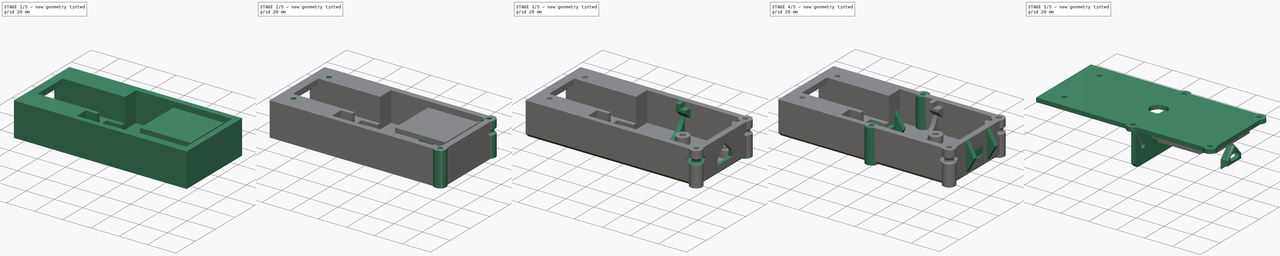
[diagram: build sequence overview — one tinted view per stage of 5, left to right]
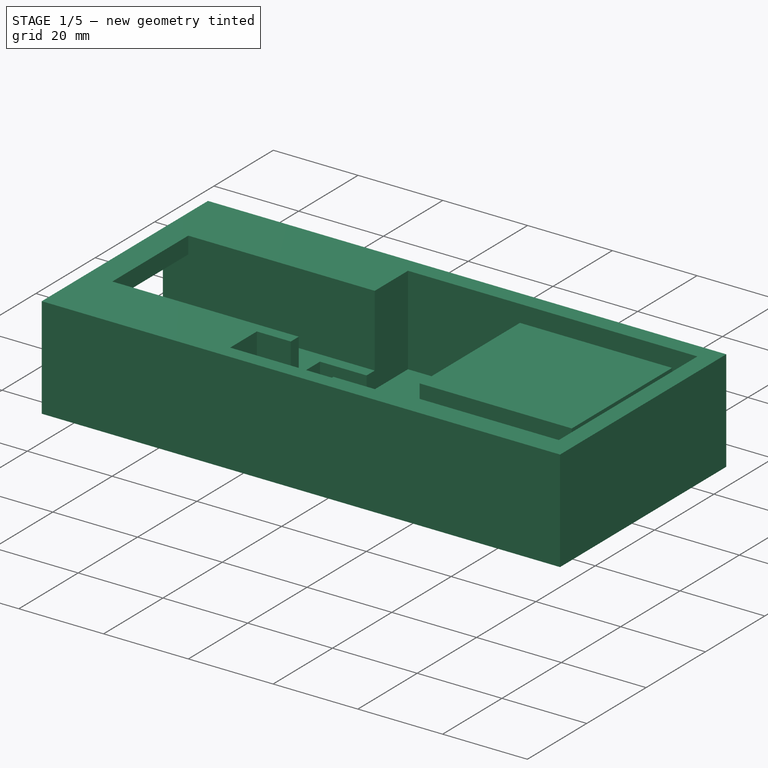
[diagram: stage 1 of 5 — iso view after this stage's code; geometry added in this stage tinted green]
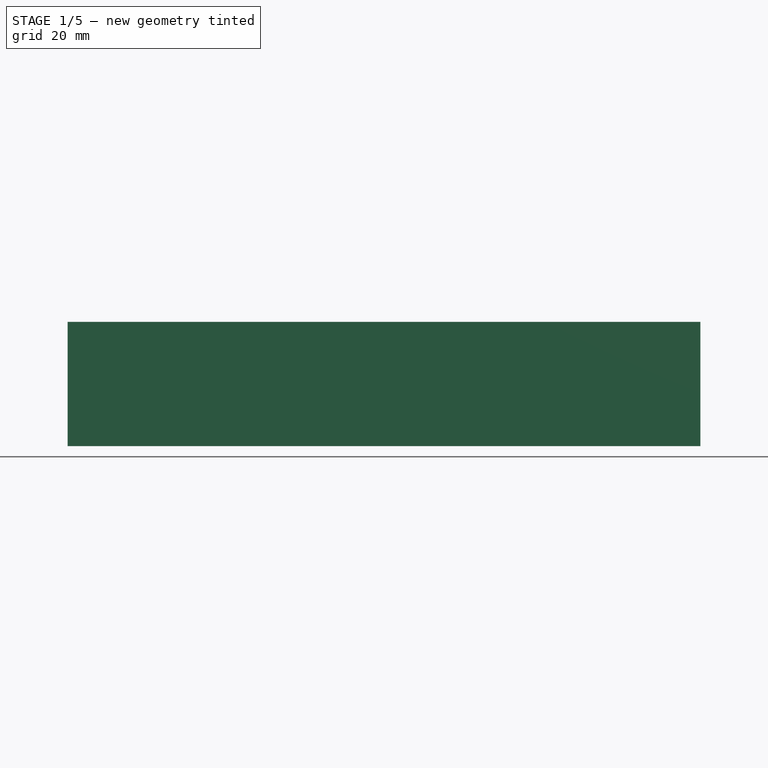
[diagram: stage 1 of 5 — front view after this stage's code; geometry added in this stage tinted green]
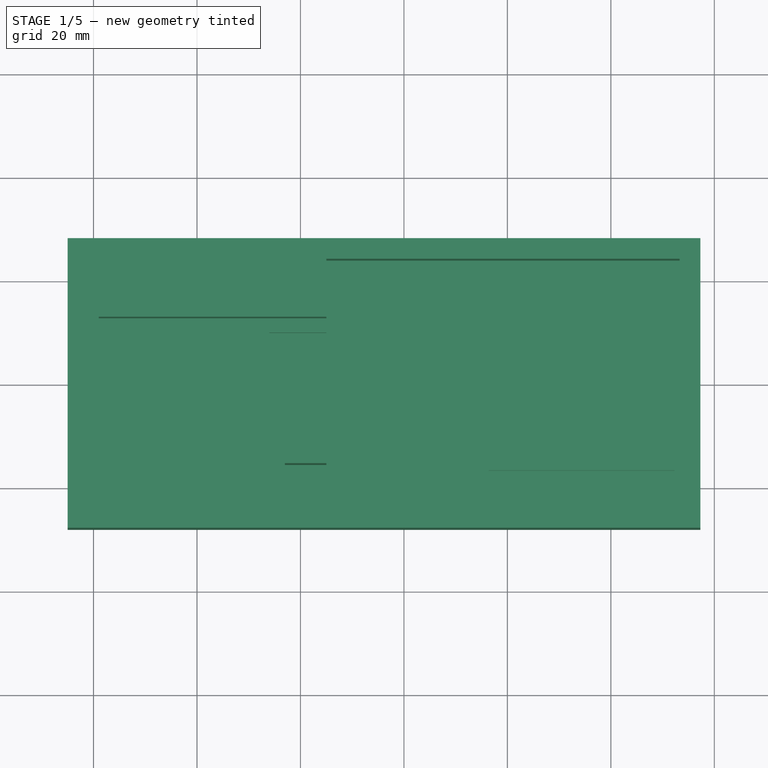
[diagram: stage 1 of 5 — top view after this stage's code; geometry added in this stage tinted green]
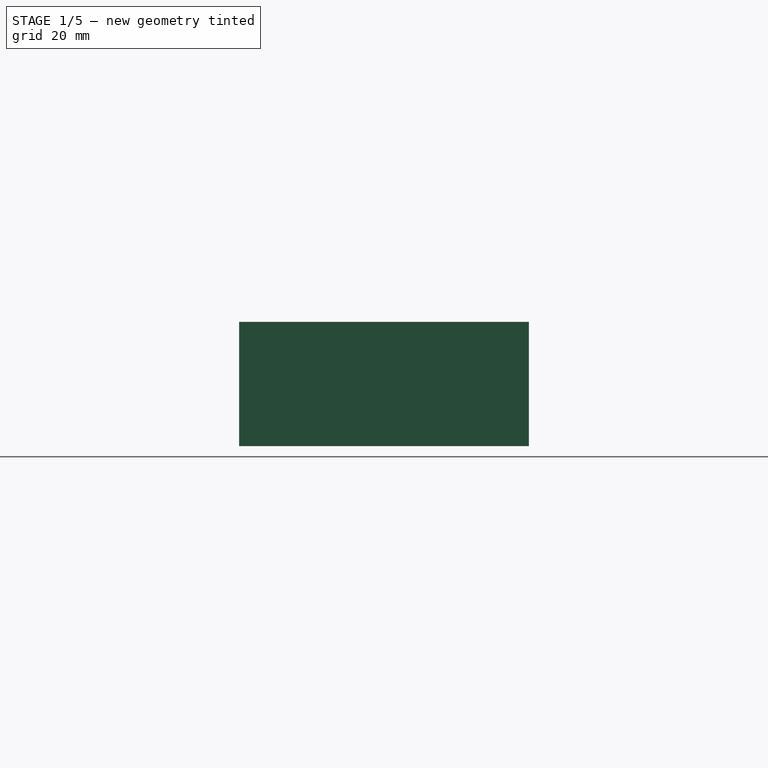
[diagram: stage 1 of 5 — right view after this stage's code; geometry added in this stage tinted green]
FCSTD DOCUMENT  (FreeCAD 0.20R29177 +426 (Git))
Label: model
License: All rights reserved
LicenseURL: http://en.wikipedia.org/wiki/All_rights_reserved
objects: Sketcher::SketchObject×34, PartDesign::Pocket×17, PartDesign::Pad×15, PartDesign::ShapeBinder×11, PartDesign::Mirrored×8, PartDesign::Body×6, Part::Box×5, PartDesign::Chamfer×3, Part::Refine×3, TechDraw::DrawViewPart×3, PartDesign::Plane×2, PartDesign::Point×2, PartDesign::Line×2, TechDraw::DrawSVGTemplate×2, TechDraw::DrawViewSection×2, TechDraw::DrawPage×2, Spreadsheet::Sheet×1, Part::Cylinder×1, Part::Feature×1, PartDesign::Revolution×1, +5 more types
note: 154 computed .brp shape members not serialized (recipe doc carries the construction recipe); baked Part::Feature solids carry a one-line shape summary decoded from their .brp

FEATURE [Spreadsheet::Sheet] Spreadsheet  label="Dimensions"
  cells = A1=Part Sizes; B2=PCB; C2=LCD; D2=Laser; E2=Battery; F2=BT; G2=Beeper; A3=Length; B3(PCB_L)=38.3; C3(LCD_L)=35.9; D3(LASER_L)=50; E3(BATT_L)=26; F3(BT_L)=24; A4=Width; B4(PCB_W)=48; C4(LCD_W)=33.8; D4(LASER_W)=25.6; E4(BATT_W)=20.1; F4(BT_W)=17; G4(BEEP_W)=27; A5=Height; B5(PCB_H)=7; C5(LCD_H)=3.3; D5(LASER_H)=12; E5(BATT_H)=4; F5(BT_H)=9; G5(BEEP_H)=0.5; A7=Values; D7=Holes; E7=Width; F7=Length; G7=To edge; A9=Wall Width; B9(wall_width)=4; D9=PCB ; E9(pcb_mount_w)=27; F9(pcb_mount_l)=30.6; G9(pcb_mount_offset)=5; A10=Floor; B10(floor)=3; D10=LCD; E10(lcd_mount_w)=27; F10(lcd_mount_l)=29; A11=Upper; B11(upper)=21; A12=PCB+LCD Height; B12(pcb_led_height)=16; A13=End wall; B13(end_wall)=4
FEATURE [Part::Box] Box  label="PCB"
  AttacherType = Attacher::AttachEngine3D
  Height = 7
  Length = 38.3
  Placement = pos=(15,-24,5) rot=(0,0,1;0rad)
  Width = 48
  expr: .Placement.Base.y = -<<Dimensions>>.PCB_W / 2
  expr: Length = <<Dimensions>>.PCB_L
  expr: Width = <<Dimensions>>.PCB_W
FEATURE [Part::Box] Box001  label="Battery"
  AttacherType = Attacher::AttachEngine3D
  Height = 4
  Length = 26
  Placement = pos=(-26,-10.05,0) rot=(0,0,1;0rad)
  Width = 20.1
  expr: .Placement.Base.x = -<<Dimensions>>.BATT_L
  expr: .Placement.Base.y = -<<Dimensions>>.BATT_W / 2
  expr: Height = <<Dimensions>>.BATT_H
  expr: Length = <<Dimensions>>.BATT_L
  expr: Width = <<Dimensions>>.BATT_W
FEATURE [Part::Box] Box002  label="Laser"
  AttacherType = Attacher::AttachEngine3D
  Height = 12
  Length = 50
  Placement = pos=(-65,-12.8,4.5) rot=(0,0,1;0rad)
  Width = 25.6
  expr: .Placement.Base.x = -(<<Dimensions>>.LASER_L + 15)
  expr: .Placement.Base.y = -<<Dimensions>>.LASER_W / 2
  expr: .Placement.Base.z = (<<Dimensions>>.upper - <<Dimensions>>.LASER_H) / 2
  expr: Height = <<Dimensions>>.LASER_H
  expr: Length = <<Dimensions>>.LASER_L
  expr: Width = <<Dimensions>>.LASER_W
FEATURE [Part::Box] Box003  label="Bluetooth"
  AttacherType = Attacher::AttachEngine3D
  Height = 9
  Length = 24
  Placement = pos=(-23,-15.5,5e-15) rot=(1,0,0;1.5708rad)
  Width = 17
  expr: Height = <<Dimensions>>.BT_H
  expr: Length = <<Dimensions>>.BT_L
  expr: Width = <<Dimensions>>.BT_W
FEATURE [Part::Box] Box004  label="LCD"
  AttacherType = Attacher::AttachEngine3D
  Height = 3.3
  Length = 35.9
  Placement = pos=(16.4,-16.9,17.7) rot=(0,0,1;0rad)
  Width = 33.8
  expr: .Placement.Base.y = -<<Dimensions>>.LCD_W / 2
  expr: .Placement.Base.z = <<Dimensions>>.upper - <<Dimensions>>.LCD_H
  expr: Height = <<Dimensions>>.LCD_H
  expr: Length = <<Dimensions>>.LCD_L
  expr: Width = <<Dimensions>>.LCD_W
FEATURE [Part::Cylinder] Cylinder  label="Beeper"
  Angle = 360
  AttacherType = Attacher::AttachEngine3D
  FirstAngle = 0
  Height = 0.5
  Placement = pos=(34,0,0) rot=(0,0,1;0rad)
  Radius = 13.5
  SecondAngle = 0
  expr: Height = <<Dimensions>>.BEEP_H
  expr: Radius = <<Dimensions>>.BEEP_W / 2
FEATURE [Part::Feature] isr3sad200  label="button"
  Placement = pos=(0,3e-15,25) rot=(1,0,0;3.14159rad)
  shape: bbox 23.67 x 17.5 x 20 mm, 212 faces, 0 solids (baked)
FEATURE [Sketcher::SketchObject] Sketch
  FullyConstrained = true
  MapMode = 5
  Support = -> [XY_Plane]
  expr: Constraints[10] = <<Dimensions>>.LASER_L + 15
  expr: Constraints[8] = <<Dimensions>>.PCB_W + <<Dimensions>>.wall_width * 2
  expr: Constraints[9] = <<Dimensions>>.PCB_L + 15 + <<Dimensions>>.end_wall
  sketch-geometry (4):
    g0: LineSegment StartX=-65 StartY=28 StartZ=0 EndX=57.3 EndY=28 EndZ=0
    g1: LineSegment StartX=57.3 StartY=28 StartZ=0 EndX=57.3 EndY=-28 EndZ=0
    g2: LineSegment StartX=57.3 StartY=-28 StartZ=0 EndX=-65 EndY=-28 EndZ=0
    g3: LineSegment StartX=-65 StartY=-28 StartZ=0 EndX=-65 EndY=28 EndZ=0
  constraints (11):
    c: Coincident(g0,g1)
    c: Coincident(g1,g2)
    c: Coincident(g2,g3)
    c: Coincident(g3,g0)
    c: Horizontal(g0)
    c: Horizontal(g2)
    c: Vertical(g1)
    c: Symmetric(g0,g2,g-1)
    c: DistanceY(g3,g3) = 56
    c: DistanceX(g-1,g0) = 57.3
    c: DistanceX(g0,g-1) = 65
FEATURE [PartDesign::Pad] Pad
  Direction = (0,0,1)
  Length = 21
  Length2 = 3
  Profile = -> Sketch
  Type = 4
  expr: Length = <<Dimensions>>.upper
  expr: Length2 = <<Dimensions>>.floor
FEATURE [PartDesign::ShapeBinder] ShapeBinder  label="PCB_Binder"
  Placement = pos=(15,-24,5) rot=(0,0,1;0rad)
  Support = -> [Box]
  TraceSupport = false
FEATURE [PartDesign::ShapeBinder] ShapeBinder001  label="Battery_Binder"
  Placement = pos=(-26,-10.05,0) rot=(0,0,1;0rad)
  Support = -> [Box001]
  TraceSupport = false
FEATURE [PartDesign::ShapeBinder] ShapeBinder002  label="Laser_Binder"
  Placement = pos=(-65,-12.8,4.5) rot=(0,0,1;0rad)
  Support = -> [Box002]
  TraceSupport = false
FEATURE [PartDesign::ShapeBinder] ShapeBinder003  label="BT_Binder"
  Placement = pos=(-23,-15.5,5e-15) rot=(1,0,0;1.5708rad)
  Support = -> [Box003]
  TraceSupport = false
FEATURE [PartDesign::ShapeBinder] ShapeBinder004  label="Beeper_Binder"
  Placement = pos=(34,0,0) rot=(0,0,1;0rad)
  Support = -> [Cylinder]
  TraceSupport = false
FEATURE [PartDesign::Plane] DatumPlane  label="Upper Surface"
  Length = 145.664
  MapMode = 5
  Placement = pos=(0,0,21) rot=(0,0,1;0rad)
  ResizeMode = 0
  Support = -> [Pad]
  Width = 78.0874
FEATURE [Sketcher::SketchObject] Sketch001
  ExternalGeometry = -> [ShapeBinder,ShapeBinder002]
  FullyConstrained = true
  MapMode = 5
  Placement = pos=(0,0,21) rot=(0,0,1;0rad)
  Support = -> [DatumPlane]
  sketch-geometry (4):
    g0: LineSegment StartX=-15 StartY=24 StartZ=0 EndX=53.3 EndY=24 EndZ=0
    g1: LineSegment StartX=53.3 StartY=24 StartZ=0 EndX=53.3 EndY=-24 EndZ=0
    g2: LineSegment StartX=53.3 StartY=-24 StartZ=0 EndX=-15 EndY=-24 EndZ=0
    g3: LineSegment StartX=-15 StartY=-24 StartZ=0 EndX=-15 EndY=24 EndZ=0
  constraints (10):
    c: Coincident(g0,g1)
    c: Coincident(g1,g2)
    c: Coincident(g2,g3)
    c: Coincident(g3,g0)
    c: Horizontal(g0)
    c: Horizontal(g2)
    c: Vertical(g3)
    c: Coincident(g1,g-3)
    c: PointOnObject(g-5,g3)
    c: Coincident(g0,g-4)
FEATURE [PartDesign::Pocket] Pocket
  BaseFeature = -> Pad
  Direction = (0,0,-1)
  Length = 21
  Length2 = 100
  Profile = -> Sketch001
  Type = 0
  expr: Length = <<Dimensions>>.upper
FEATURE [Sketcher::SketchObject] Sketch002
  ExternalGeometry = -> [ShapeBinder002]
  FullyConstrained = true
  MapMode = 5
  Placement = pos=(0,0,21) rot=(0,0,1;0rad)
  Support = -> [DatumPlane]
  sketch-geometry (4):
    g0: LineSegment StartX=-65 StartY=12.8 StartZ=0 EndX=-15 EndY=12.8 EndZ=0
    g1: LineSegment StartX=-15 StartY=12.8 StartZ=0 EndX=-15 EndY=-12.8 EndZ=0
    g2: LineSegment StartX=-15 StartY=-12.8 StartZ=0 EndX=-65 EndY=-12.8 EndZ=0
    g3: LineSegment StartX=-65 StartY=-12.8 StartZ=0 EndX=-65 EndY=12.8 EndZ=0
  constraints (10):
    c: Coincident(g0,g1)
    c: Coincident(g1,g2)
    c: Coincident(g2,g3)
    c: Coincident(g3,g0)
    c: Horizontal(g0)
    c: Horizontal(g2)
    c: Vertical(g1)
    c: Vertical(g3)
    c: Coincident(g0,g-3)
    c: Coincident(g1,g-4)
FEATURE [PartDesign::Pocket] Pocket001
  BaseFeature = -> Pocket
  Direction = (0,0,-1)
  Length = 17
  Length2 = 100
  Profile = -> Sketch002
  Type = 0
  expr: Length = <<Dimensions>>.LASER_H + 5
FEATURE [Sketcher::SketchObject] Sketch003
  ExternalGeometry = -> [ShapeBinder001,ShapeBinder003]
  FullyConstrained = true
  MapMode = 5
  Placement = pos=(0,0,21) rot=(0,0,1;0rad)
  Support = -> [DatumPlane]
  sketch-geometry (8):
    g0: LineSegment StartX=-26 StartY=10.05 StartZ=0 EndX=0 EndY=10.05 EndZ=0
    g1: LineSegment StartX=0 StartY=10.05 StartZ=0 EndX=0 EndY=-10.05 EndZ=0
    g2: LineSegment StartX=0 StartY=-10.05 StartZ=0 EndX=-26 EndY=-10.05 EndZ=0
    g3: LineSegment StartX=-26 StartY=-10.05 StartZ=0 EndX=-26 EndY=10.05 EndZ=0
    g4: LineSegment StartX=-23 StartY=-15.5 StartZ=0 EndX=1 EndY=-15.5 EndZ=0
    g5: LineSegment StartX=1 StartY=-15.5 StartZ=0 EndX=1 EndY=-24.5 EndZ=0
    g6: LineSegment StartX=1 StartY=-24.5 StartZ=0 EndX=-23 EndY=-24.5 EndZ=0
    g7: LineSegment StartX=-23 StartY=-24.5 StartZ=0 EndX=-23 EndY=-15.5 EndZ=0
  constraints (20):
    c: Coincident(g0,g1)
    c: Coincident(g1,g2)
    c: Coincident(g2,g3)
    c: Coincident(g3,g0)
    c: Horizontal(g0)
    c: Horizontal(g2)
    c: Vertical(g1)
    c: Vertical(g3)
    c: Coincident(g0,g-3)
    c: Coincident(g1,g-4)
    c: Coincident(g4,g5)
    c: Coincident(g5,g6)
    c: Coincident(g6,g7)
    c: Coincident(g7,g4)
    c: Horizontal(g4)
    c: Horizontal(g6)
    c: Vertical(g5)
    c: Vertical(g7)
    c: Coincident(g4,g-5)
    c: Coincident(g5,g-6)
FEATURE [PartDesign::Pocket] Pocket002
  BaseFeature = -> Pocket001
  Direction = (0,0,-1)
  Length = 21
  Length2 = 100
  Profile = -> Sketch003
  Type = 0
  expr: Length = <<Dimensions>>.upper
FEATURE [Sketcher::SketchObject] Sketch004
  ExternalGeometry = -> [ShapeBinder002]
  FullyConstrained = true
  MapMode = 5
  Placement = pos=(0,0,21) rot=(0,0,1;0rad)
  Support = -> [DatumPlane]
  sketch-geometry (4):
    g0: LineSegment StartX=-65 StartY=12.8 StartZ=0 EndX=-59 EndY=12.8 EndZ=0
    g1: LineSegment StartX=-59 StartY=12.8 StartZ=0 EndX=-59 EndY=-12.8 EndZ=0
    g2: LineSegment StartX=-59 StartY=-12.8 StartZ=0 EndX=-65 EndY=-12.8 EndZ=0
    g3: LineSegment StartX=-65 StartY=-12.8 StartZ=0 EndX=-65 EndY=12.8 EndZ=0
  constraints (10):
    c: Coincident(g0,g1)
    c: Coincident(g1,g2)
    c: Coincident(g2,g3)
    c: Coincident(g3,g0)
    c: Horizontal(g0)
    c: Horizontal(g2)
    c: Vertical(g1)
    c: Coincident(g0,g-3)
    c: Coincident(g2,g-3)
    c: DistanceX(g0,g0) = 6
FEATURE [PartDesign::Pad] Pad001
  BaseFeature = -> Pocket002
  Direction = (0,0,1)
  Length = 4
  Length2 = 100
  Profile = -> Sketch004
  Reversed = true
  Type = 0
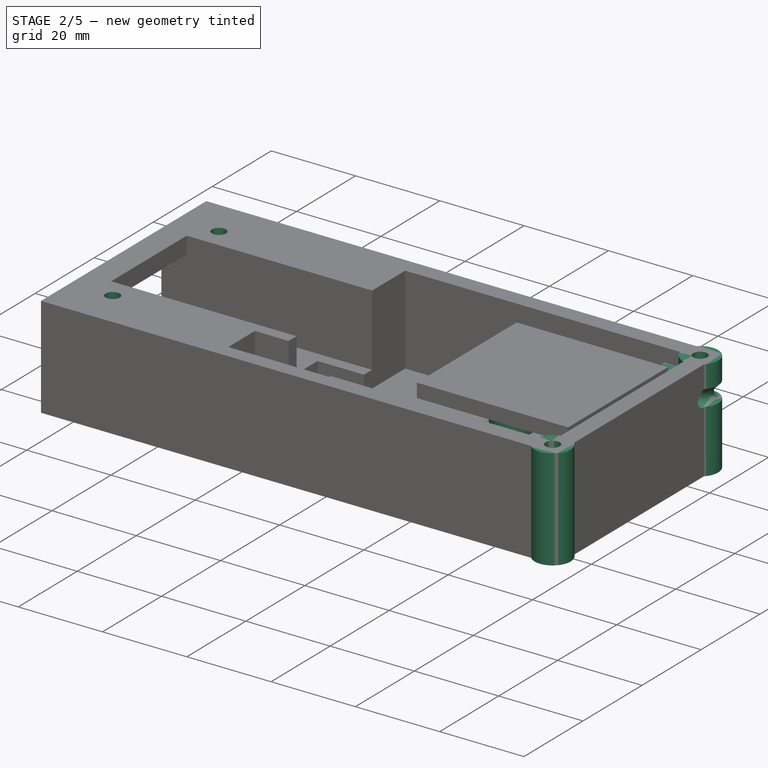
[diagram: stage 2 of 5 — iso view after this stage's code; geometry added in this stage tinted green]
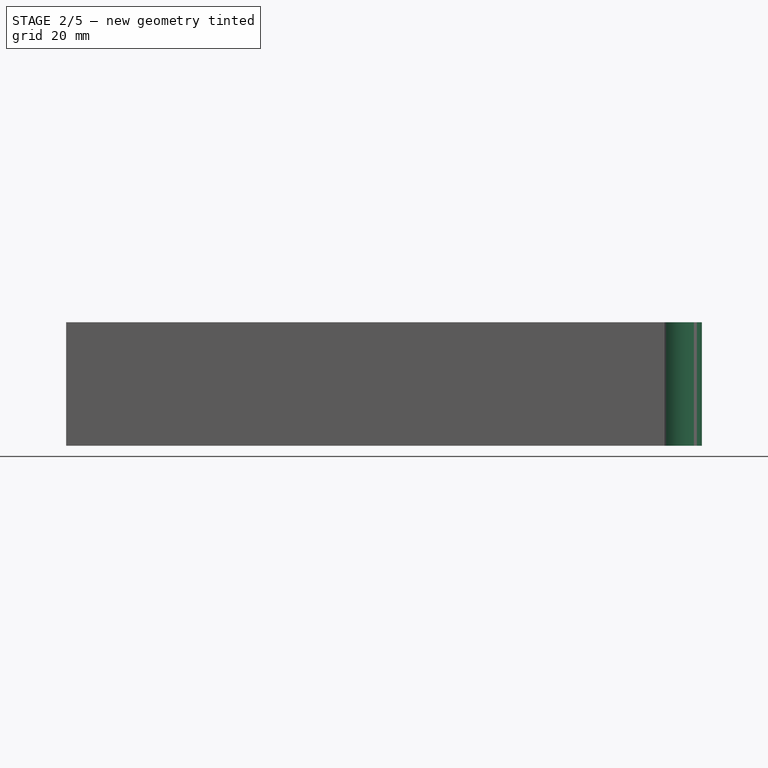
[diagram: stage 2 of 5 — front view after this stage's code; geometry added in this stage tinted green]
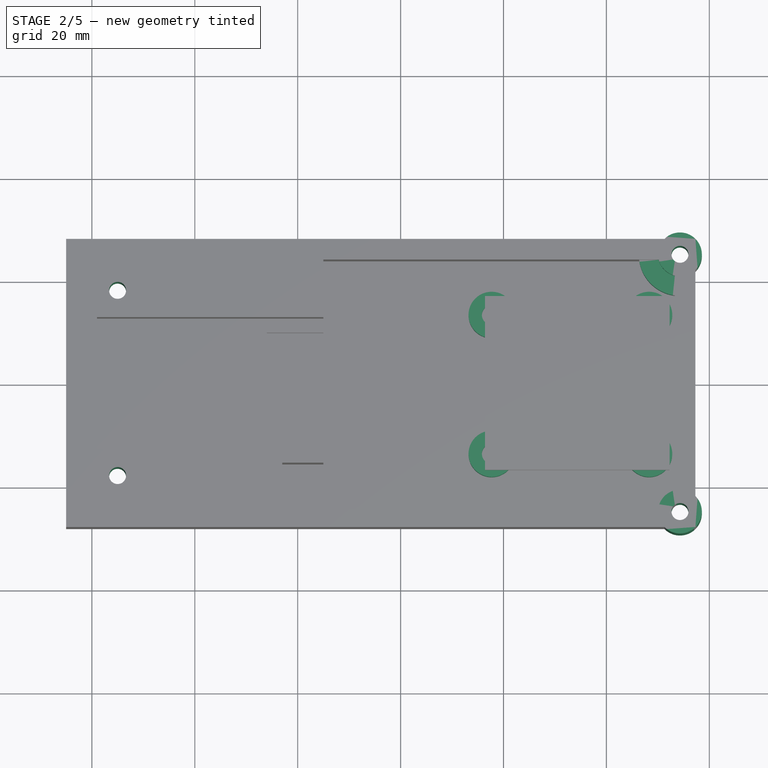
[diagram: stage 2 of 5 — top view after this stage's code; geometry added in this stage tinted green]
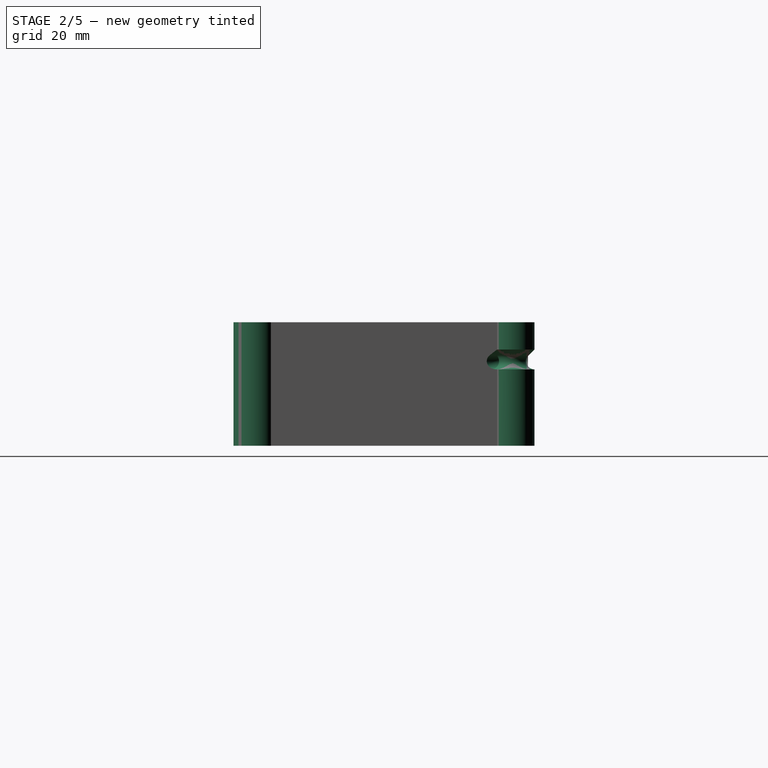
[diagram: stage 2 of 5 — right view after this stage's code; geometry added in this stage tinted green]
FEATURE [Sketcher::SketchObject] Sketch005
  ExternalGeometry = -> [ShapeBinder004]
  FullyConstrained = true
  MapMode = 5
  Support = -> [XY_Plane]
  sketch-geometry (1):
    g0: Circle CenterX=34 CenterY=0 CenterZ=0 NormalX=0 NormalY=0 NormalZ=1 AngleXU=0 Radius=13.5
  constraints (2):
    c: Equal(g-4,g0)
    c: Coincident(g0,g-4)
FEATURE [PartDesign::Pocket] Pocket003
  BaseFeature = -> Pad001
  Direction = (0,0,-1)
  Length = 1
  Length2 = 100
  Profile = -> Sketch005
  Type = 0
FEATURE [Sketcher::SketchObject] Sketch006
  ExternalGeometry = -> [ShapeBinder]
  FullyConstrained = true
  MapMode = 5
  Support = -> [XY_Plane]
  expr: Constraints[10] = <<Dimensions>>.pcb_mount_l
  expr: Constraints[8] = <<Dimensions>>.pcb_mount_offset
  expr: Constraints[9] = <<Dimensions>>.pcb_mount_w
  sketch-geometry (13):
    g0: LineSegment StartX=17.7 StartY=13.5 StartZ=0 EndX=48.3 EndY=13.5 EndZ=0
    g1: LineSegment StartX=48.3 StartY=13.5 StartZ=0 EndX=48.3 EndY=-13.5 EndZ=0
    g2: LineSegment StartX=48.3 StartY=-13.5 StartZ=0 EndX=17.7 EndY=-13.5 EndZ=0
    g3: LineSegment StartX=17.7 StartY=-13.5 StartZ=0 EndX=17.7 EndY=13.5 EndZ=0
    g4: Circle CenterX=17.7 CenterY=13.5 CenterZ=0 NormalX=0 NormalY=0 NormalZ=1 AngleXU=0 Radius=4.5
    g5: Circle CenterX=17.7 CenterY=13.5 CenterZ=0 NormalX=0 NormalY=0 NormalZ=1 AngleXU=0 Radius=1.9
    g6: Circle CenterX=48.3 CenterY=13.5 CenterZ=0 NormalX=0 NormalY=0 NormalZ=1 AngleXU=0 Radius=1.9
    g7: Circle CenterX=48.3 CenterY=13.5 CenterZ=0 NormalX=0 NormalY=0 NormalZ=1 AngleXU=0 Radius=4.5
    g8: Circle CenterX=48.3 CenterY=-13.5 CenterZ=0 NormalX=0 NormalY=0 NormalZ=1 AngleXU=0 Radius=1.9
    g9: Circle CenterX=48.3 CenterY=-13.5 CenterZ=0 NormalX=0 NormalY=0 NormalZ=1 AngleXU=0 Radius=4.5
    g10: Circle CenterX=17.7 CenterY=-13.5 CenterZ=0 NormalX=0 NormalY=0 NormalZ=1 AngleXU=0 Radius=1.9
    g11: Circle CenterX=17.7 CenterY=-13.5 CenterZ=0 NormalX=0 NormalY=0 NormalZ=1 AngleXU=0 Radius=4.5
    g12: GeomPoint X=33 Y=-4e-16 Z=0
  constraints (28):
    c: Coincident(g0,g1)
    c: Coincident(g1,g2)
    c: Coincident(g2,g3)
    c: Coincident(g3,g0)
    c: Horizontal(g0)
    c: Horizontal(g2)
    c: Vertical(g3)
    c: Symmetric(g0,g1,g-1)
    c: DistanceX(g0,g-3) = 5
    c: DistanceY(g3,g3) = 27
    c: DistanceX(g2,g2) = 30.6
    c: Coincident(g4,g0)
    c: Coincident(g5,g4)
    c: Coincident(g6,g0)
    c: Coincident(g7,g6)
    c: Coincident(g8,g1)
    c: Coincident(g9,g8)
    c: Coincident(g10,g2)
    c: Coincident(g11,g10)
    c: Equal(g5,g10)
    c: Equal(g10,g8)
    c: Equal(g8,g6)
    c: Equal(g4,g7)
    c: Equal(g7,g11)
    c: Equal(g11,g9)
    c: Diameter(g5) = 3.8
    c: Diameter(g4) = 9
    c: Symmetric(g4,g8,g12)
FEATURE [PartDesign::Pad] Pad002
  BaseFeature = -> Pocket003
  Direction = (0,0,1)
  Length = 5
  Length2 = 100
  Profile = -> Sketch006
  Type = 0
  expr: Length = <<Dimensions>>.upper - <<Dimensions>>.pcb_led_height
FEATURE [PartDesign::Point] DatumPoint
  AttacherType = Attacher::AttachEnginePoint
  MapMode = 37
  Placement = pos=(33,2.4e-15,0) rot=(0,0,1;0rad)
  Support = -> [Sketch006]
FEATURE [PartDesign::Line] DatumLine  label="CentreLCDAxis"
  AttacherType = Attacher::AttachEngineLine
  Length = 20
  MapMode = 46
  Placement = pos=(33,2.4e-15,0) rot=(0,0,1;3.14159rad)
  ResizeMode = 0
  Support = -> [DatumPoint,XY_Plane]
FEATURE [PartDesign::Plane] DatumPlane002
  Length = 71.4839
  MapMode = 4
  Placement = pos=(33,2.4e-15,0) rot=(0.57735,-0.57735,-0.57735;2.0944rad)
  ResizeMode = 0
  Support = -> [DatumLine]
  Width = 60.9987
FEATURE [Sketcher::SketchObject] Sketch009
  ExternalGeometry = -> [Pad]
  FullyConstrained = true
  MapMode = 5
  Placement = pos=(-65,0,0) rot=(0.57735,-0.57735,-0.57735;2.0944rad)
  Support = -> [Pad]
  sketch-geometry (3):
    g0: Circle CenterX=-20 CenterY=9 CenterZ=0 NormalX=0 NormalY=0 NormalZ=1 AngleXU=0 Radius=1.9
    g1: Circle CenterX=20 CenterY=9 CenterZ=0 NormalX=0 NormalY=0 NormalZ=1 AngleXU=0 Radius=1.9
    g2: GeomPoint X=-1.4e-15 Y=9 Z=0
  constraints (6):
    c: Equal(g0,g1)
    c: Symmetric(g-3,g-4,g2)
    c: Symmetric(g0,g1,g2)
    c: Horizontal(g0,g1)
    c: DistanceX(g-3,g0) = 8
    c: Diameter(g1) = 3.8
FEATURE [PartDesign::Pocket] Pocket005
  BaseFeature = -> Pad002
  Direction = (1,0,0)
  Length = 6
  Length2 = 100
  Profile = -> Sketch009
  Type = 0
FEATURE [Sketcher::SketchObject] Sketch011
  ExternalGeometry = -> [Pad]
  FullyConstrained = true
  MapMode = 5
  Placement = pos=(0,0,21) rot=(0,0,1;0rad)
  Support = -> [DatumPlane]
  sketch-geometry (1):
    g0: Circle CenterX=54.3 CenterY=25 CenterZ=0 NormalX=0 NormalY=0 NormalZ=1 AngleXU=0 Radius=4.25
  constraints (3):
    c: DistanceX(g0,g-4) = 3
    c: DistanceY(g0,g-4) = 3
    c: Diameter(g0) = 8.5
FEATURE [PartDesign::Pad] Pad004
  BaseFeature = -> Pocket005
  Direction = (0,0,1)
  Length = 24
  Length2 = 100
  Profile = -> Sketch011
  Reversed = true
  Type = 0
  expr: Length = <<Dimensions>>.upper + <<Dimensions>>.floor
FEATURE [Sketcher::SketchObject] Sketch012
  ExternalGeometry = -> [Pad]
  FullyConstrained = true
  MapMode = 5
  Placement = pos=(0,0,21) rot=(0,0,1;0rad)
  Support = -> [DatumPlane]
  sketch-geometry (2):
    g0: Circle CenterX=54.3 CenterY=25 CenterZ=0 NormalX=0 NormalY=0 NormalZ=1 AngleXU=0 Radius=1.65
    g1: Circle CenterX=-55 CenterY=18 CenterZ=0 NormalX=0 NormalY=0 NormalZ=1 AngleXU=0 Radius=1.65
  constraints (6):
    c: DistanceX(g0,g-3) = 3
    c: Diameter(g0) = 3.3
    c: Equal(g0,g1)
    c: DistanceX(g-3,g1) = 10
    c: DistanceY(g1,g-3) = 10
    c: DistanceY(g0,g-3) = 3
FEATURE [PartDesign::Pocket] Pocket007
  BaseFeature = -> Pad004
  Direction = (0,0,-1)
  Length = 5
  Length2 = 100
  Profile = -> Sketch012
  Type = 1
FEATURE [Sketcher::SketchObject] Sketch013
  AttachmentOffset = pos=(0,0,-3) rot=(0,0,1;0rad)
  ExternalGeometry = -> [Pad]
  FullyConstrained = true
  MapMode = 5
  Placement = pos=(0,0,-3) rot=(0,0,1;0rad)
  Support = -> [XY_Plane]
  expr: .AttachmentOffset.Base.z = -<<Dimensions>>.floor
  sketch-geometry (14):
    g0: LineSegment StartX=-51.5359 StartY=18 StartZ=0 EndX=-53.2679 EndY=21 EndZ=0
    g1: LineSegment StartX=-53.2679 StartY=21 StartZ=0 EndX=-56.7321 EndY=21 EndZ=0
    g2: LineSegment StartX=-56.7321 StartY=21 StartZ=0 EndX=-58.4641 EndY=18 EndZ=0
    g3: LineSegment StartX=-58.4641 StartY=18 StartZ=0 EndX=-56.7321 EndY=15 EndZ=0
    g4: LineSegment StartX=-56.7321 StartY=15 StartZ=0 EndX=-53.2679 EndY=15 EndZ=0
    g5: LineSegment StartX=-53.2679 StartY=15 StartZ=0 EndX=-51.5359 EndY=18 EndZ=0
    g6: Circle CenterX=-55 CenterY=18 CenterZ=0 NormalX=0 NormalY=0 NormalZ=1 AngleXU=0 Radius=3.4641
    g7: LineSegment StartX=56.0321 StartY=22 StartZ=0 EndX=57.7641 EndY=25 EndZ=0
    g8: LineSegment StartX=57.7641 StartY=25 StartZ=0 EndX=56.0321 EndY=28 EndZ=0
    g9: LineSegment StartX=56.0321 StartY=28 StartZ=0 EndX=52.5679 EndY=28 EndZ=0
    g10: LineSegment StartX=52.5679 StartY=28 StartZ=0 EndX=50.8359 EndY=25 EndZ=0
    g11: LineSegment StartX=50.8359 StartY=25 StartZ=0 EndX=52.5679 EndY=22 EndZ=0
    g12: LineSegment StartX=52.5679 StartY=22 StartZ=0 EndX=56.0321 EndY=22 EndZ=0
    g13: Circle CenterX=54.3 CenterY=25 CenterZ=0 NormalX=0 NormalY=0 NormalZ=1 AngleXU=0 Radius=3.4641
  constraints (34):
    c: Coincident(g0,g1)
    c: Coincident(g1,g2)
    c: Coincident(g2,g3)
    c: Coincident(g3,g4)
    c: Coincident(g4,g5)
    c: Coincident(g5,g0)
    c: Equal(g0, g1-g5) x5
    c: PointOnObject(g0,g6)
    c: PointOnObject(g1,g6)
    c: PointOnObject(g2,g6)
    c: PointOnObject(g3,g6)
    c: PointOnObject(g4,g6)
    c: PointOnObject(g5,g6)
    c: Horizontal(g1)
    c: DistanceX(g-3,g6) = 10
    c: DistanceY(g6,g-3) = 10
    c: DistanceY(g4,g0) = 6
    c: Coincident(g7,g8)
    c: Coincident(g8,g9)
    c: Coincident(g9,g10)
    c: Coincident(g10,g11)
    c: Coincident(g11,g12)
    c: Coincident(g12,g7)
    c: Equal(g7, g8-g12) x5
    c: PointOnObject(g7,g13)
    c: PointOnObject(g8,g13)
    c: PointOnObject(g9,g13)
    c: PointOnObject(g10,g13)
    c: PointOnObject(g11,g13)
    c: PointOnObject(g12,g13)
    c: Horizontal(g12)
    c: DistanceX(g13,g-3) = 3
    c: DistanceY(g7,g8) = 6
    c: DistanceY(g13,g-3) = 3
FEATURE [PartDesign::Pocket] Pocket008
  BaseFeature = -> Pocket007
  Direction = (0,0,-1)
  Length = 4
  Length2 = 100
  Profile = -> Sketch013
  Reversed = true
  Type = 0
FEATURE [Sketcher::SketchObject] Sketch014
  AttachmentOffset = pos=(0,0,-3) rot=(0,0,1;0rad)
  ExternalGeometry = -> [Pad,ShapeBinder]
  FullyConstrained = true
  MapMode = 5
  Placement = pos=(54.3,0,0) rot=(0.57735,0.57735,0.57735;2.0944rad)
  Support = -> [Pad]
  expr: Constraints[9] = <<Dimensions>>.LCD_H
  sketch-geometry (4):
    g0: LineSegment StartX=23 StartY=6 StartZ=0 EndX=17 EndY=12 EndZ=0
    g1: LineSegment StartX=23 StartY=17.7 StartZ=0 EndX=23 EndY=6 EndZ=0
    g2: LineSegment StartX=17 StartY=12 StartZ=0 EndX=17 EndY=17.7 EndZ=0
    g3: LineSegment StartX=17 StartY=17.7 StartZ=0 EndX=23 EndY=17.7 EndZ=0
  constraints (12):
    c: Coincident(g1,g0)
    c: Vertical(g1)
    c: DistanceX(g0,g-3) = 5
    c: DistanceX(g-1,g0) = 17
    c: Coincident(g0,g2)
    c: Vertical(g2)
    c: Coincident(g2,g3)
    c: Horizontal(g3)
    c: Coincident(g1,g3)
    c: DistanceY(g1,g-3) = 3.3
    c: Angle(g1,g0) = 0.785398
    c: PointOnObject(g-4,g0)
FEATURE [PartDesign::Line] DatumLine001  label="Hole Axis"
  AttacherType = Attacher::AttachEngineLine
  Length = 20
  MapMode = 19
  Placement = pos=(54.3,25,21) rot=(0,0,1;0rad)
  ResizeMode = 0
  Support = -> [Sketch011]
FEATURE [PartDesign::Revolution] Revolution
  Angle = 90
  Axis = (0,0,1)
  Base = (54.3,25,21)
  BaseFeature = -> Pocket008
  Profile = -> Sketch014
  ReferenceAxis = -> DatumLine001
  Reversed = true
FEATURE [Sketcher::SketchObject] Sketch015
  AttachmentOffset = pos=(0,0,-3) rot=(0,0,1;0rad)
  ExternalGeometry = -> [Pad,Sketch014,Sketch011]
  FullyConstrained = true
  MapMode = 5
  Placement = pos=(54.3,0,0) rot=(0.57735,0.57735,0.57735;2.0944rad)
  Support = -> [Pad]
  sketch-geometry (3):
    g0: LineSegment StartX=20.75 StartY=15.7 StartZ=0 EndX=21.8814 EndY=14.5686 EndZ=0
    g1: ArcOfCircle CenterX=20.75 CenterY=13.4373 CenterZ=0 NormalX=0 NormalY=0 NormalZ=1 AngleXU=0 Radius=1.6 StartAngle=2.35619 EndAngle=7.06858
    g2: LineSegment StartX=19.6186 StartY=14.5686 StartZ=0 EndX=20.75 EndY=15.7 EndZ=0
  constraints (8):
    c: Tangent(g0,g1) = 1.5708
    c: Tangent(g1,g2) = 1.5708
    c: Coincident(g2,g0)
    c: Perpendicular(g0,g2)
    c: Diameter(g1) = 3.2
    c: Vertical(g1,g0)
    c: Vertical(g0,g-6)
    c: DistanceY(g0,g-5) = 2
FEATURE [PartDesign::Groove] Groove
  Angle = 360
  Axis = (0,0,1)
  Base = (54.3,25,21)
  BaseFeature = -> Revolution
  Profile = -> Sketch015
  ReferenceAxis = -> DatumLine001
  Reversed = true
FEATURE [PartDesign::Mirrored] Mirrored
  BaseFeature = -> Groove
  MirrorPlane = -> XZ_Plane
  Originals = -> [Pad004,Pocket007,Pocket008]
FEATURE [Sketcher::SketchObject] Sketch016
  ExternalGeometry = -> [ShapeBinder]
  FullyConstrained = true
  MapMode = 5
  Support = -> [XY_Plane]
  expr: Constraints[11] = <<Dimensions>>.upper * 0.75
  sketch-geometry (4):
    g0: LineSegment StartX=9 StartY=24 StartZ=0 EndX=12 EndY=24 EndZ=0
    g1: LineSegment StartX=9 StartY=24 StartZ=0 EndX=9 EndY=8.25 EndZ=0
    g2: LineSegment StartX=9 StartY=8.25 StartZ=0 EndX=12 EndY=8.25 EndZ=0
    g3: LineSegment StartX=12 StartY=8.25 StartZ=0 EndX=12 EndY=24 EndZ=0
  constraints (12):
    c: Horizontal(g0)
    c: DistanceX(g0,g-3) = 3
    c: DistanceX(g0,g0) = 3
    c: Horizontal(g0,g-3)
    c: Coincident(g0,g1)
    c: Vertical(g1)
    c: Coincident(g1,g2)
    c: Horizontal(g2)
    c: Coincident(g2,g3)
    c: Coincident(g3,g0)
    c: Vertical(g3)
    c: DistanceY(g1,g1) = 15.75
FEATURE [PartDesign::Pad] Pad005
  BaseFeature = -> Mirrored
  Direction = (0,0,1)
  Length = 0.1
  Length2 = 100
  Profile = -> Sketch016
  Type = 0
FEATURE [PartDesign::Mirrored] Mirrored001
  BaseFeature = -> Pad005
  MirrorPlane = -> Sketch016 [H_Axis]
  Originals = -> [Pad005]
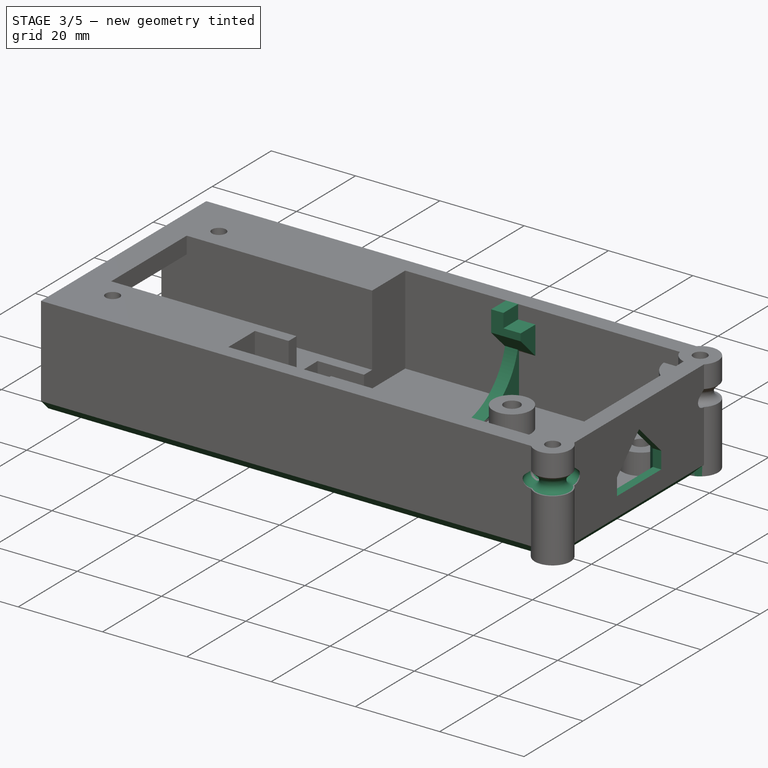
[diagram: stage 3 of 5 — iso view after this stage's code; geometry added in this stage tinted green]
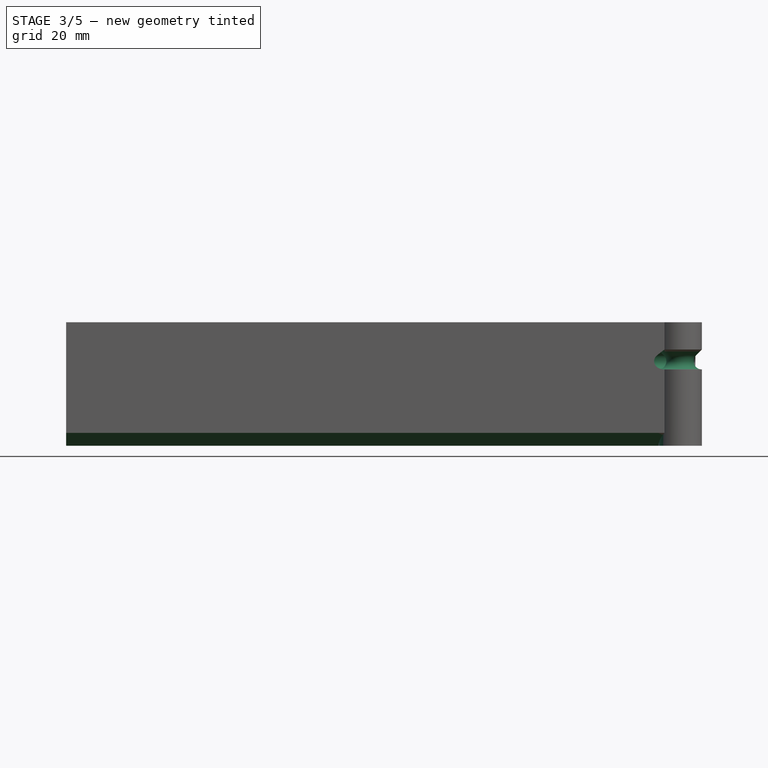
[diagram: stage 3 of 5 — front view after this stage's code; geometry added in this stage tinted green]
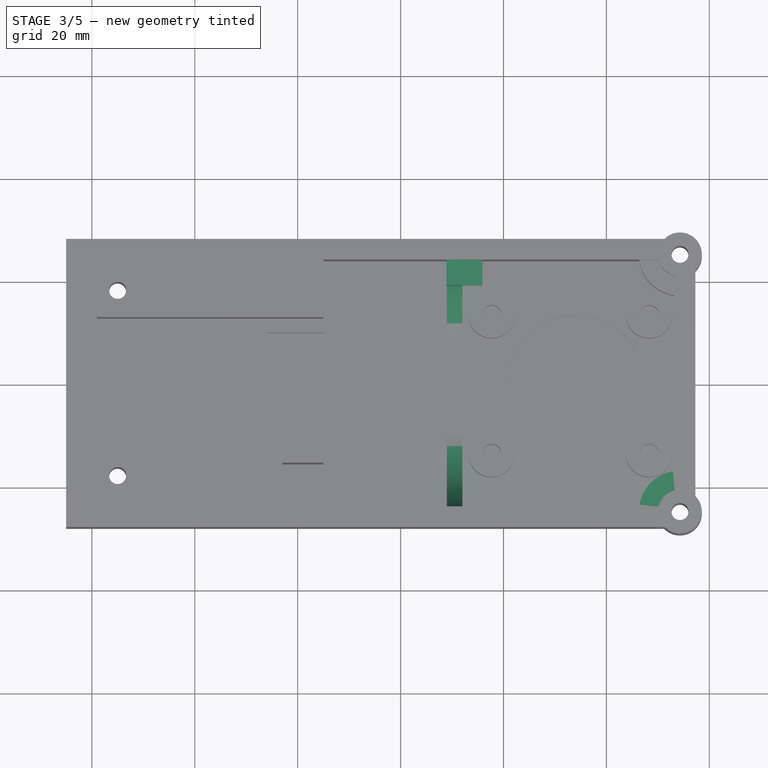
[diagram: stage 3 of 5 — top view after this stage's code; geometry added in this stage tinted green]
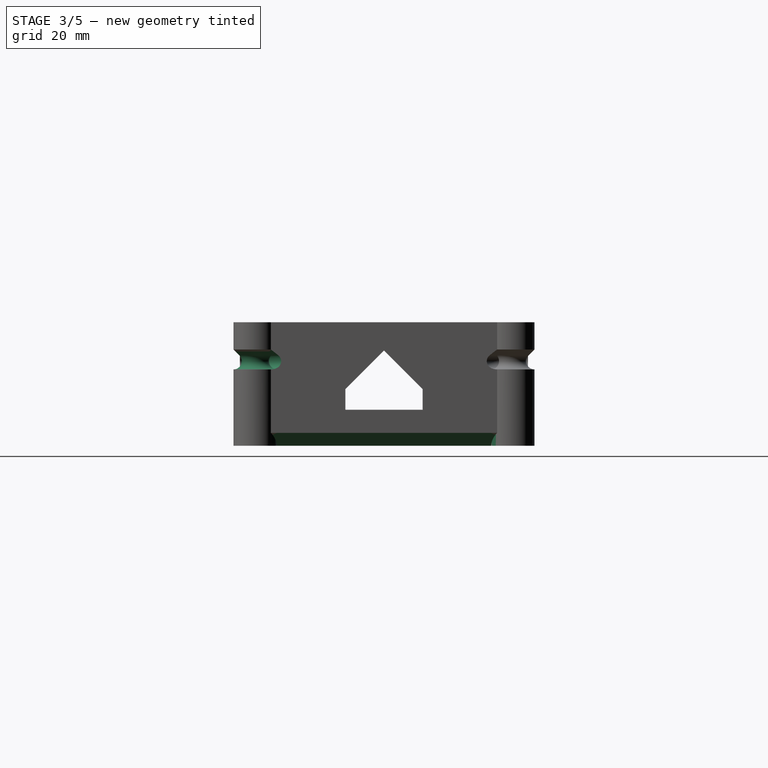
[diagram: stage 3 of 5 — right view after this stage's code; geometry added in this stage tinted green]
FEATURE [Sketcher::SketchObject] Sketch017
  ExternalGeometry = -> [ShapeBinder]
  FullyConstrained = true
  MapMode = 5
  Placement = pos=(15,-24,5) rot=(0.57735,-0.57735,-0.57735;2.0944rad)
  Support = -> [ShapeBinder]
  sketch-geometry (4):
    g0: LineSegment StartX=0 StartY=7 StartZ=0 EndX=2 EndY=5 EndZ=0
    g1: LineSegment StartX=2 StartY=5 StartZ=0 EndX=2 EndY=2 EndZ=0
    g2: LineSegment StartX=2 StartY=2 StartZ=0 EndX=0 EndY=0 EndZ=0
    g3: LineSegment StartX=0 StartY=0 StartZ=0 EndX=0 EndY=7 EndZ=0
  constraints (10):
    c: Coincident(g-3,g0)
    c: Coincident(g0,g1)
    c: Vertical(g1)
    c: Coincident(g1,g2)
    c: Coincident(g2,g-1)
    c: Coincident(g2,g3)
    c: Coincident(g3,g0)
    c: DistanceX(g0,g0) = 2
    c: Angle(g3,g0) = 0.785398
    c: Angle(g2,g3) = 0.785398
FEATURE [PartDesign::Pocket] Pocket009
  BaseFeature = -> Mirrored001
  Direction = (1,0,0)
  Length = 17
  Length2 = 100
  Profile = -> Sketch017
  Type = 0
FEATURE [PartDesign::Mirrored] Mirrored002
  BaseFeature = -> Pocket009
  MirrorPlane = -> Sketch014 [V_Axis]
  Originals = -> [Revolution,Groove]
FEATURE [PartDesign::Chamfer] Chamfer
  Angle = 45
  Base = -> Mirrored002 [Edge1,Edge11,Edge10]
  BaseFeature = -> Mirrored002
  ChamferType = 0
  FlipDirection = false
  Size = 2.5
  Size2 = 1
  SupportTransform = false
  UseAllEdges = false
FEATURE [PartDesign::Fillet] Fillet
  Base = -> Chamfer [Edge232,Edge143]
  BaseFeature = -> Chamfer
  Radius = 15
  SupportTransform = false
  UseAllEdges = false
FEATURE [Sketcher::SketchObject] Sketch018
  FullyConstrained = true
  MapMode = 5
  Placement = pos=(53.3,-24,5) rot=(0.57735,0.57735,0.57735;2.0944rad)
  Support = -> [ShapeBinder]
  sketch-geometry (4):
    g0: LineSegment StartX=2 StartY=0 StartZ=0 EndX=2 EndY=2 EndZ=0
    g1: LineSegment StartX=2 StartY=2 StartZ=0 EndX=5 EndY=5 EndZ=0
    g2: LineSegment StartX=5 StartY=5 StartZ=0 EndX=5 EndY=0 EndZ=0
    g3: LineSegment StartX=5 StartY=0 StartZ=0 EndX=2 EndY=0 EndZ=0
  constraints (12):
    c: PointOnObject(g0,g-1)
    c: Vertical(g0)
    c: Coincident(g0,g1)
    c: Coincident(g1,g2)
    c: PointOnObject(g2,g-1)
    c: Vertical(g2)
    c: Coincident(g2,g3)
    c: Coincident(g3,g0)
    c: Angle(g1,g2) = 0.785398
    c: DistanceX(g-1,g0) = 2
    c: DistanceY(g0,g0) = 2
    c: DistanceX(g3,g3) = 3
FEATURE [PartDesign::Pocket] Pocket010
  BaseFeature = -> Fillet
  Direction = (-1,0,0)
  Length = 8
  Length2 = 100
  Profile = -> Sketch018
  Type = 0
FEATURE [PartDesign::Mirrored] Mirrored003
  BaseFeature = -> Pocket010
  MirrorPlane = -> XZ_Plane
  Originals = -> [Pocket010]
FEATURE [Sketcher::SketchObject] Sketch019
  ExternalGeometry = -> [ShapeBinder]
  FullyConstrained = true
  MapMode = 5
  Placement = pos=(53.3,-24,5) rot=(0.57735,0.57735,0.57735;2.0944rad)
  Support = -> [ShapeBinder]
  sketch-geometry (6):
    g0: LineSegment StartX=16.5 StartY=-1 StartZ=0 EndX=31.5 EndY=-1 EndZ=0
    g1: LineSegment StartX=31.5 StartY=-1 StartZ=0 EndX=31.5 EndY=3 EndZ=0
    g2: LineSegment StartX=31.5 StartY=3 StartZ=0 EndX=24 EndY=10.5 EndZ=0
    g3: LineSegment StartX=24 StartY=10.5 StartZ=0 EndX=16.5 EndY=3 EndZ=0
    g4: LineSegment StartX=16.5 StartY=3 StartZ=0 EndX=16.5 EndY=-1 EndZ=0
    g5: GeomPoint X=24 Y=0 Z=0
  constraints (16):
    c: Horizontal(g0)
    c: Coincident(g0,g1)
    c: Vertical(g1)
    c: Coincident(g1,g2)
    c: Coincident(g2,g3)
    c: Coincident(g3,g4)
    c: Coincident(g4,g0)
    c: Vertical(g4)
    c: Perpendicular(g2,g3)
    c: Equal(g2,g3)
    c: Horizontal(g3,g1)
    c: DistanceX(g0,g0) = 15
    c: DistanceY(g1,g1) = 4
    c: Symmetric(g-3,g-1,g5)
    c: Vertical(g5,g2)
    c: DistanceY(g0,g-3) = 1
FEATURE [PartDesign::Pocket] Pocket011
  BaseFeature = -> Mirrored003
  Direction = (-1,0,0)
  Length = 3
  Length2 = 100
  Profile = -> Sketch019
  Reversed = true
  Type = 2
FEATURE [PartDesign::Body] Body004  label="USB Widget"
  Group = -> [ShapeBinder007,Sketch022,Pad008,Sketch023,DatumPoint001,Pocket012,Sketch024,Pocket013,Sketch025,Pocket014]
  Origin = -> Origin003
  Placement = pos=(110.6,0,0) rot=(0,0,1;3.14159rad)
  Tip = -> Pocket014
FEATURE [Part::Refine] Body004001  label="USB Widget001"
  Source = -> Body004
FEATURE [Sketcher::SketchObject] Sketch026
  FullyConstrained = true
  MapMode = 5
  Support = -> [XY_Plane002]
  sketch-geometry (4):
    g0: ArcOfCircle CenterX=0 CenterY=0 CenterZ=0 NormalX=0 NormalY=0 NormalZ=1 AngleXU=0 Radius=6 StartAngle=5.12353 EndAngle=7.44284
    g1: ArcOfCircle CenterX=0 CenterY=0 CenterZ=0 NormalX=0 NormalY=0 NormalZ=1 AngleXU=0 Radius=6 StartAngle=1.98193 EndAngle=4.30125
    g2: LineSegment StartX=-2.39792 StartY=5.5 StartZ=0 EndX=2.39792 EndY=5.5 EndZ=0
    g3: LineSegment StartX=-2.39792 StartY=-5.5 StartZ=0 EndX=2.39792 EndY=-5.5 EndZ=0
  constraints (12):
    c: Coincident(g0,g-1)
    c: Coincident(g1,g0)
    c: Equal(g1,g0)
    c: Coincident(g2,g1)
    c: Coincident(g2,g0)
    c: Horizontal(g2)
    c: Coincident(g3,g1)
    c: Coincident(g3,g0)
    c: Horizontal(g3)
    c: Equal(g2,g3)
    c: DistanceY(g0,g0) = 11
    c: Radius(g0) = 6
FEATURE [PartDesign::Chamfer] Chamfer001
  Angle = 45
  Base = -> Pocket011 [Edge122,Edge121,Edge120,Edge119,Edge118]
  BaseFeature = -> Pocket011
  ChamferType = 0
  FlipDirection = false
  Size = 2
  Size2 = 1
  SupportTransform = false
  UseAllEdges = false
FEATURE [PartDesign::Body] Body004003  label="LCD Holder"
  Group = -> [ShapeBinder008,ShapeBinder009,Sketch027,Pad009,Sketch028,Pad010,Chamfer002]
  Origin = -> Origin004
  Tip = -> Chamfer002
FEATURE [PartDesign::ShapeBinder] ShapeBinder010  label="LCD Binder"
  Placement = pos=(16.4,-16.9,17.7) rot=(0,0,1;0rad)
  Support = -> [Box004]
  TraceSupport = false
FEATURE [Sketcher::SketchObject] Sketch029
  ExternalGeometry = -> [ShapeBinder010,ShapeBinder]
  FullyConstrained = true
  MapMode = 5
  Placement = pos=(0,0,21) rot=(0,0,1;0rad)
  Support = -> [DatumPlane]
  sketch-geometry (4):
    g0: LineSegment StartX=8.9 StartY=24 StartZ=0 EndX=15.9 EndY=24 EndZ=0
    g1: LineSegment StartX=15.9 StartY=24 StartZ=0 EndX=15.9 EndY=19 EndZ=0
    g2: LineSegment StartX=15.9 StartY=19 StartZ=0 EndX=8.9 EndY=19 EndZ=0
    g3: LineSegment StartX=8.9 StartY=19 StartZ=0 EndX=8.9 EndY=24 EndZ=0
  constraints (12):
    c: Coincident(g0,g1)
    c: Coincident(g1,g2)
    c: Coincident(g2,g3)
    c: Coincident(g3,g0)
    c: Horizontal(g0)
    c: Horizontal(g2)
    c: Vertical(g1)
    c: Vertical(g3)
    c: Horizontal(g0,g-4)
    c: DistanceX(g0,g0) = 7
    c: DistanceY(g3,g3) = 5
    c: DistanceX(g-4,g0) = 0.9
FEATURE [PartDesign::Pad] Pad011
  BaseFeature = -> Chamfer001
  Direction = (0,0,1)
  Length = 5
  Length2 = 100
  Profile = -> Sketch029
  Reversed = true
  Type = 0
FEATURE [Sketcher::SketchObject] Sketch030
  ExternalGeometry = -> [ShapeBinder010,ShapeBinder]
  FullyConstrained = true
  MapMode = 5
  Placement = pos=(0,0,21) rot=(0,0,1;0rad)
  Support = -> [DatumPlane]
  sketch-geometry (4):
    g0: LineSegment StartX=11.8 StartY=24 StartZ=0 EndX=15.9 EndY=24 EndZ=0
    g1: LineSegment StartX=15.9 StartY=24 StartZ=0 EndX=15.9 EndY=19 EndZ=0
    g2: LineSegment StartX=15.9 StartY=19 StartZ=0 EndX=11.8 EndY=19 EndZ=0
    g3: LineSegment StartX=11.8 StartY=19 StartZ=0 EndX=11.8 EndY=24 EndZ=0
  constraints (12):
    c: Coincident(g0,g1)
    c: Coincident(g1,g2)
    c: Coincident(g2,g3)
    c: Coincident(g3,g0)
    c: Horizontal(g0)
    c: Horizontal(g2)
    c: Vertical(g1)
    c: Vertical(g3)
    c: DistanceX(g2,g2) = 4.1
    c: PointOnObject(g-4,g0)
    c: DistanceY(g3,g3) = 5
    c: DistanceX(g-4,g0) = 0.9
FEATURE [PartDesign::Pocket] Pocket016
  BaseFeature = -> Pad011
  Direction = (0,0,-1)
  Length = 3.3
  Length2 = 100
  Profile = -> Sketch030
  Type = 0
  expr: Length = <<Dimensions>>.LCD_H
FEATURE [Sketcher::SketchObject] Sketch031
  ExternalGeometry = -> [Pocket016]
  FullyConstrained = true
  MapMode = 5
  Placement = pos=(8.9,0,0) rot=(0.57735,-0.57735,-0.57735;2.0944rad)
  Support = -> [Pocket016]
  sketch-geometry (3):
    g0: LineSegment StartX=-24 StartY=16 StartZ=0 EndX=-19 EndY=16 EndZ=0
    g1: LineSegment StartX=-19 StartY=16 StartZ=0 EndX=-24 EndY=11 EndZ=0
    g2: LineSegment StartX=-24 StartY=11 StartZ=0 EndX=-24 EndY=16 EndZ=0
  constraints (7):
    c: Coincident(g-3,g0)
    c: Coincident(g0,g-3)
    c: Coincident(g0,g1)
    c: Coincident(g1,g2)
    c: Coincident(g2,g0)
    c: Vertical(g2)
    c: Equal(g0,g2)
FEATURE [PartDesign::Pad] Pad012
  BaseFeature = -> Pocket016
  Direction = (-1,0,0)
  Length = 7
  Length2 = 100
  Profile = -> Sketch031
  Reversed = true
  Type = 0
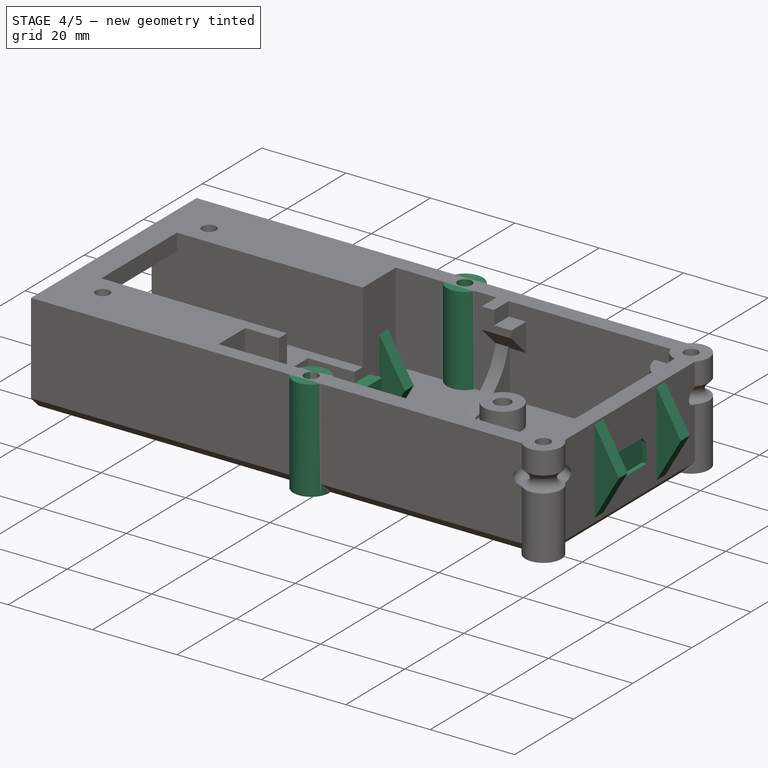
[diagram: stage 4 of 5 — iso view after this stage's code; geometry added in this stage tinted green]
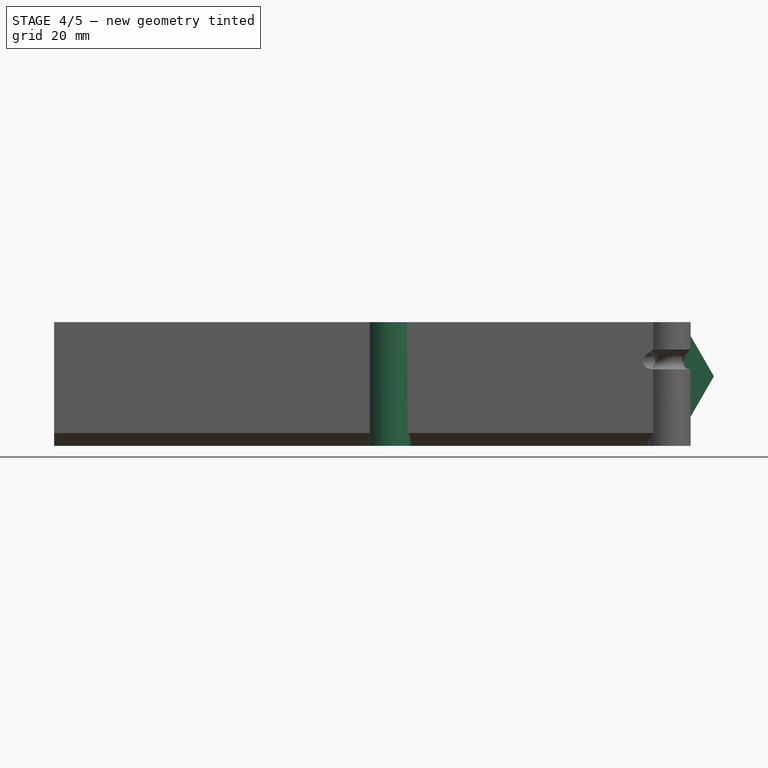
[diagram: stage 4 of 5 — front view after this stage's code; geometry added in this stage tinted green]
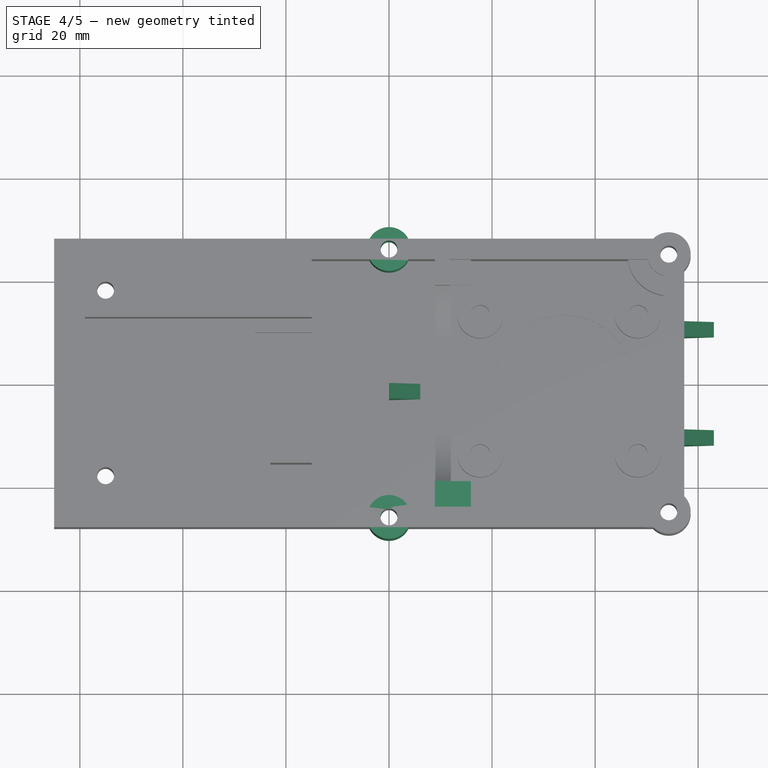
[diagram: stage 4 of 5 — top view after this stage's code; geometry added in this stage tinted green]
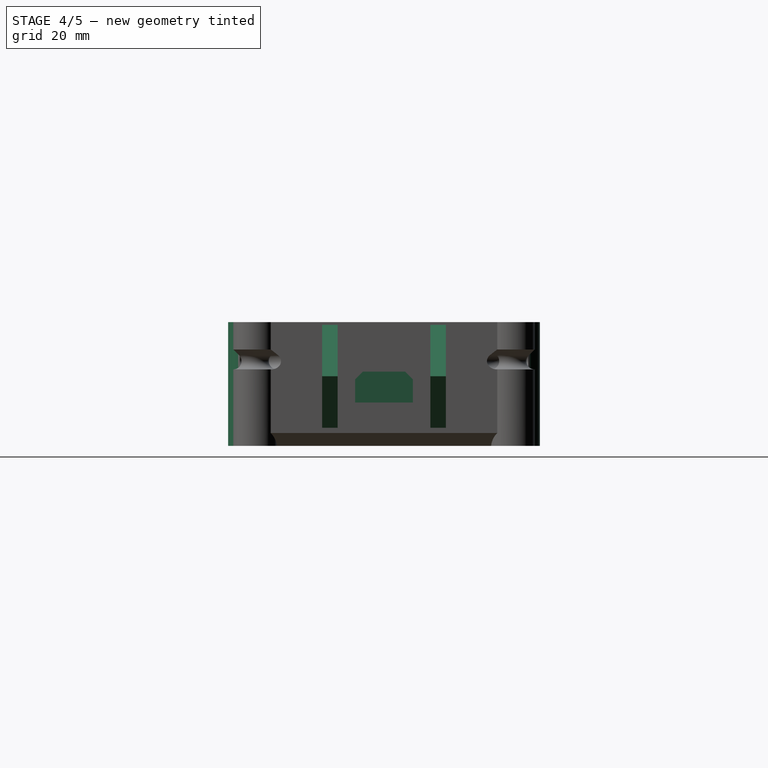
[diagram: stage 4 of 5 — right view after this stage's code; geometry added in this stage tinted green]
FEATURE [TechDraw::DrawSVGTemplate] Template
  Height = 210
  Orientation = 1
  Width = 297
FEATURE [TechDraw::DrawSVGTemplate] Template001
  Height = 210
  Orientation = 1
  Width = 297
FEATURE [PartDesign::ShapeBinder] ShapeBinder007
  Placement = pos=(15,-24,5) rot=(0,0,1;0rad)
  Support = -> [Box]
  TraceSupport = false
FEATURE [Sketcher::SketchObject] Sketch022
  ExternalGeometry = -> [ShapeBinder007]
  FullyConstrained = true
  MapMode = 5
  Placement = pos=(53.3,-24,5) rot=(0.57735,0.57735,0.57735;2.0944rad)
  Support = -> [ShapeBinder007]
  sketch-geometry (4):
    g0: LineSegment StartX=10 StartY=14 StartZ=0 EndX=38 EndY=14 EndZ=0
    g1: LineSegment StartX=38 StartY=14 StartZ=0 EndX=38 EndY=-5 EndZ=0
    g2: LineSegment StartX=38 StartY=-5 StartZ=0 EndX=10 EndY=-5 EndZ=0
    g3: LineSegment StartX=10 StartY=-5 StartZ=0 EndX=10 EndY=14 EndZ=0
  constraints (12):
    c: Coincident(g0,g1)
    c: Coincident(g1,g2)
    c: Coincident(g2,g3)
    c: Coincident(g3,g0)
    c: Horizontal(g0)
    c: Horizontal(g2)
    c: Vertical(g1)
    c: Vertical(g3)
    c: DistanceY(g1,g-3) = 5
    c: DistanceY(g-3,g0) = 14
    c: DistanceX(g0,g-3) = 10
    c: DistanceX(g-1,g0) = 10
FEATURE [PartDesign::Pad] Pad008
  Direction = (1,0,0)
  Length = 4
  Length2 = 100
  Placement = pos=(15,-24,5) rot=(0,0,1;0rad)
  Profile = -> Sketch022
  Type = 0
  expr: Length = <<Dimensions>>.end_wall
FEATURE [PartDesign::Point] DatumPoint001
  AttacherType = Attacher::AttachEnginePoint
  AttachmentOffset = pos=(0,0,-0.1) rot=(0,0,1;0rad)
  MapMode = 37
  Placement = pos=(53.3,0,8.4) rot=(0,0,1;0rad)
  Support = -> [ShapeBinder007]
FEATURE [Sketcher::SketchObject] Sketch023
  ExternalGeometry = -> [Pad008,DatumPoint001]
  FullyConstrained = true
  MapMode = 5
  Placement = pos=(57.3,-24,5) rot=(0.57735,0.57735,0.57735;2.0944rad)
  Support = -> [Pad008]
  sketch-geometry (4):
    g0: LineSegment StartX=18.4 StartY=6.4 StartZ=0 EndX=29.6 EndY=6.4 EndZ=0
    g1: LineSegment StartX=29.6 StartY=6.4 StartZ=0 EndX=29.6 EndY=0.4 EndZ=0
    g2: LineSegment StartX=29.6 StartY=0.4 StartZ=0 EndX=18.4 EndY=0.4 EndZ=0
    g3: LineSegment StartX=18.4 StartY=0.4 StartZ=0 EndX=18.4 EndY=6.4 EndZ=0
  constraints (12):
    c: Coincident(g0,g1)
    c: Coincident(g1,g2)
    c: Coincident(g2,g3)
    c: Coincident(g3,g0)
    c: Horizontal(g0)
    c: Horizontal(g2)
    c: Vertical(g1)
    c: Vertical(g3)
    c: DistanceX(g0,g0) = 11.2
    c: DistanceY(g1,g1) = 6
    c: Symmetric(g0,g2,g-5)
    c: DistanceY(g-1,g2) = 0.4
FEATURE [PartDesign::Pocket] Pocket012
  BaseFeature = -> Pad008
  Direction = (-1,0,0)
  Length = 1
  Length2 = 100
  Placement = pos=(15,-24,5) rot=(0,0,1;0rad)
  Profile = -> Sketch023
  Type = 0
FEATURE [PartDesign::Mirrored] Mirrored004
  BaseFeature = -> Pad012
  MirrorPlane = -> XZ_Plane
  Originals = -> [Pad011,Pocket016,Pad012]
FEATURE [Sketcher::SketchObject] Sketch032
  AttachmentOffset = pos=(0,0,9) rot=(0,0,1;0rad)
  ExternalGeometry = -> [DatumPlane]
  FullyConstrained = true
  MapMode = 5
  Placement = pos=(0,-9,-2e-15) rot=(1,0,0;1.5708rad)
  Support = -> [XZ_Plane]
  sketch-geometry (3):
    g0: LineSegment StartX=57 StartY=0 StartZ=0 EndX=57 EndY=21 EndZ=0
    g1: LineSegment StartX=57 StartY=21 StartZ=0 EndX=63.0622 EndY=10.5 EndZ=0
    g2: LineSegment StartX=63.0622 StartY=10.5 StartZ=0 EndX=57 EndY=0 EndZ=0
  constraints (10):
    c: PointOnObject(g0,g-1)
    c: Vertical(g0)
    c: Coincident(g0,g1)
    c: Coincident(g1,g2)
    c: Coincident(g2,g0)
    c: PointOnObject(g0,g-3)
    c: Angle(g1,g2) = 2.0944
    c: Equal(g1,g2)
    c: DistanceY(g0,g0) = 21
    c: DistanceX(g-1,g0) = 57
FEATURE [PartDesign::Pad] Pad013
  BaseFeature = -> Mirrored004
  Direction = (0,-1,-2e-16)
  Length = 3
  Length2 = 10
  Profile = -> Sketch032
  ReferenceAxis = -> Sketch032 [N_Axis]
  Type = 0
FEATURE [PartDesign::Mirrored] Mirrored005
  BaseFeature = -> Pad013
  MirrorPlane = -> XZ_Plane
  Originals = -> [Pad013]
FEATURE [PartDesign::Body] Body003  label="Top Plate"
  Group = -> [ShapeBinder011,Sketch021,Pad007,Sketch026,Pocket015]
  Origin = -> Origin002
  Tip = -> Pocket015
FEATURE [TechDraw::DrawViewPart] View001
  CoarseView = false
  Direction = (0,0,1)
  Focus = 100
  HardHidden = false
  IsoCount = 0
  IsoHidden = false
  IsoVisible = false
  LockPosition = false
  Perspective = false
  Rotation = 0
  ScaleType = 0
  SeamHidden = false
  SeamVisible = true
  SmoothHidden = false
  SmoothVisible = true
  Source = -> [Body003]
  X = 102.159
  XDirection = (1,0,0)
  Y = 152.337
FEATURE [Sketcher::SketchObject] Sketch033
  FullyConstrained = true
  MapMode = 5
  Placement = pos=(0,0,0) rot=(1,0,0;1.5708rad)
  Support = -> [XZ_Plane005]
  sketch-geometry (3):
    g0: LineSegment StartX=0 StartY=0 StartZ=0 EndX=0 EndY=21 EndZ=0
    g1: LineSegment StartX=0 StartY=21 StartZ=0 EndX=6.06218 EndY=10.5 EndZ=0
    g2: LineSegment StartX=6.06218 StartY=10.5 StartZ=0 EndX=-9e-16 EndY=0 EndZ=0
  constraints (8):
    c: Coincident(g-1,g0)
    c: PointOnObject(g0,g-2)
    c: Coincident(g0,g1)
    c: Coincident(g1,g2)
    c: Coincident(g2,g0)
    c: DistanceY(g0,g0) = 21
    c: Angle(g1,g2) = 2.0944
    c: Equal(g1,g2)
FEATURE [PartDesign::Pad] Pad014
  Direction = (0,-1,2e-16)
  Length = 3
  Length2 = 10
  Placement = pos=(0,0,0) rot=(1,0,0;1.5708rad)
  Profile = -> Sketch033
  ReferenceAxis = -> Sketch033 [N_Axis]
  Type = 0
FEATURE [PartDesign::Body] Body004004  label="Noddle"
  Group = -> [Sketch033,Pad014]
  Origin = -> Origin005
  Placement = pos=(69,0,0) rot=(0,0,1;0rad)
  Tip = -> Pad014
FEATURE [Sketcher::SketchObject] Sketch034
  FullyConstrained = true
  MapMode = 5
  Support = -> [XY_Plane]
  sketch-geometry (1):
    g0: Circle CenterX=0 CenterY=-26 CenterZ=0 NormalX=0 NormalY=0 NormalZ=1 AngleXU=0 Radius=4.25
  constraints (3):
    c: PointOnObject(g0,g-2)
    c: Diameter(g0) = 8.5
    c: DistanceY(g0,g-1) = 26
FEATURE [PartDesign::Pad] Pad015
  BaseFeature = -> Mirrored005
  Direction = (0,0,1)
  Length = 21
  Length2 = 3
  Profile = -> Sketch034
  ReferenceAxis = -> Sketch034 [N_Axis]
  Type = 4
  expr: Length = <<Dimensions>>.upper
  expr: Length2 = <<Dimensions>>.floor
FEATURE [PartDesign::Mirrored] Mirrored006
  BaseFeature = -> Pad015
  MirrorPlane = -> Sketch034 [H_Axis]
  Originals = -> [Pad015]
FEATURE [Sketcher::SketchObject] Sketch035
  FullyConstrained = true
  MapMode = 5
  Support = -> [XY_Plane]
  sketch-geometry (1):
    g0: Circle CenterX=0 CenterY=-26 CenterZ=0 NormalX=0 NormalY=0 NormalZ=1 AngleXU=0 Radius=1.65
  constraints (3):
    c: PointOnObject(g0,g-2)
    c: Diameter(g0) = 3.3
    c: DistanceY(g0,g-1) = 26
FEATURE [PartDesign::Pocket] Pocket017
  BaseFeature = -> Mirrored006
  Direction = (0,0,-1)
  Length = 5
  Length2 = 5
  Midplane = true
  Profile = -> Sketch035
  ReferenceAxis = -> Sketch035 [N_Axis]
  Type = 1
FEATURE [Sketcher::SketchObject] Sketch036
  FullyConstrained = true
  MapMode = 5
  Support = -> [XY_Plane]
  sketch-geometry (7):
    g0: LineSegment StartX=3.4641 StartY=-26 StartZ=0 EndX=1.73205 EndY=-23 EndZ=0
    g1: LineSegment StartX=1.73205 StartY=-23 StartZ=0 EndX=-1.73205 EndY=-23 EndZ=0
    g2: LineSegment StartX=-1.73205 StartY=-23 StartZ=0 EndX=-3.4641 EndY=-26 EndZ=0
    g3: LineSegment StartX=-3.4641 StartY=-26 StartZ=0 EndX=-1.73205 EndY=-29 EndZ=0
    g4: LineSegment StartX=-1.73205 StartY=-29 StartZ=0 EndX=1.73205 EndY=-29 EndZ=0
    g5: LineSegment StartX=1.73205 StartY=-29 StartZ=0 EndX=3.4641 EndY=-26 EndZ=0
    g6: Circle CenterX=0 CenterY=-26 CenterZ=0 NormalX=0 NormalY=0 NormalZ=1 AngleXU=0 Radius=3.4641
  constraints (17):
    c: Coincident(g0,g1)
    c: Coincident(g1,g2)
    c: Coincident(g2,g3)
    c: Coincident(g3,g4)
    c: Coincident(g4,g5)
    c: Coincident(g5,g0)
    c: Equal(g0, g1-g5) x5
    c: PointOnObject(g0,g6)
    c: PointOnObject(g1,g6)
    c: PointOnObject(g2,g6)
    c: PointOnObject(g3,g6)
    c: PointOnObject(g4,g6)
    c: PointOnObject(g5,g6)
    c: PointOnObject(g6,g-2)
    c: Horizontal(g1)
    c: DistanceY(g4,g0) = 6
    c: DistanceY(g6,g-1) = 26
FEATURE [PartDesign::Pocket] Pocket018
  BaseFeature = -> Pocket017
  Direction = (0,0,-1)
  Length = 10
  Length2 = 5
  Profile = -> Sketch036
  ReferenceAxis = -> Sketch036 [N_Axis]
  Type = 0
FEATURE [PartDesign::Mirrored] Mirrored007
  BaseFeature = -> Pocket018
  MirrorPlane = -> Sketch035 [H_Axis]
  Originals = -> [Pocket017,Pocket018]
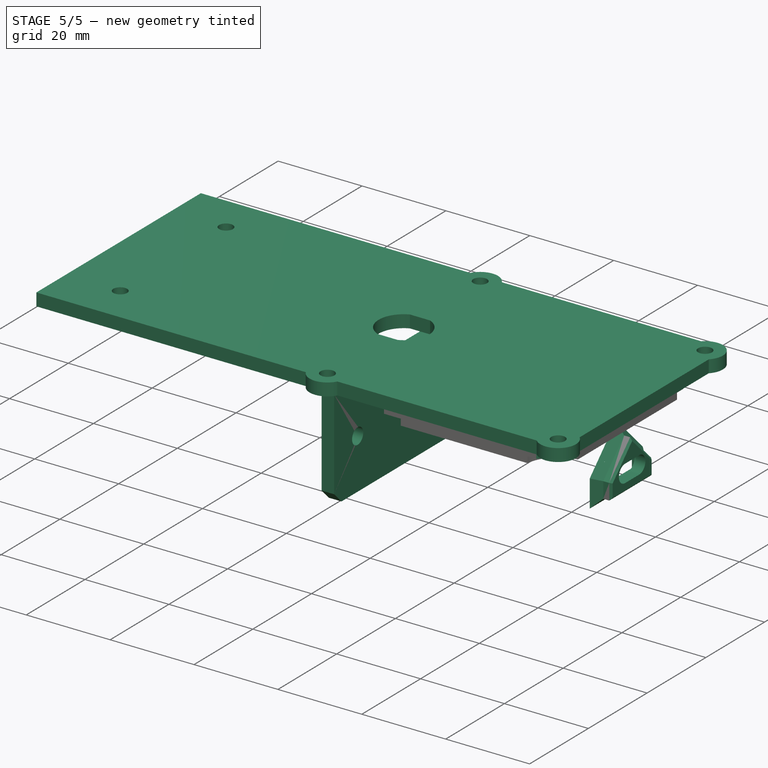
[diagram: stage 5 of 5 — iso view after this stage's code; geometry added in this stage tinted green]
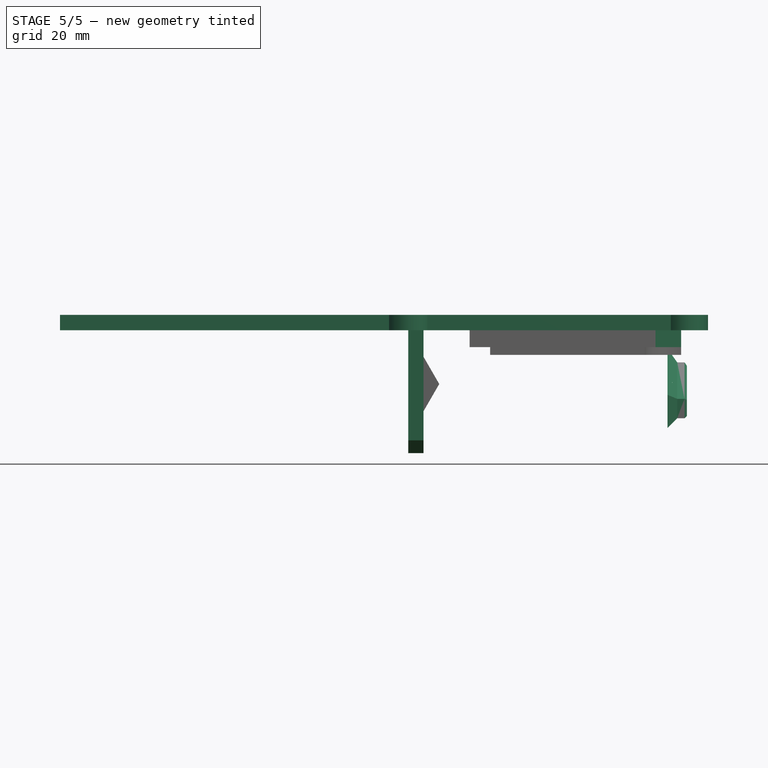
[diagram: stage 5 of 5 — front view after this stage's code; geometry added in this stage tinted green]
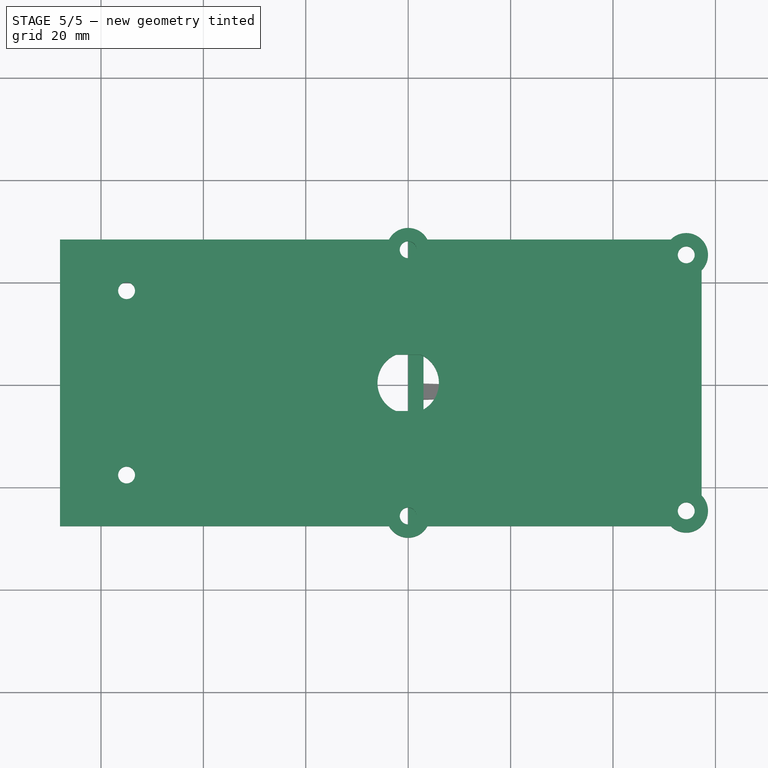
[diagram: stage 5 of 5 — top view after this stage's code; geometry added in this stage tinted green]
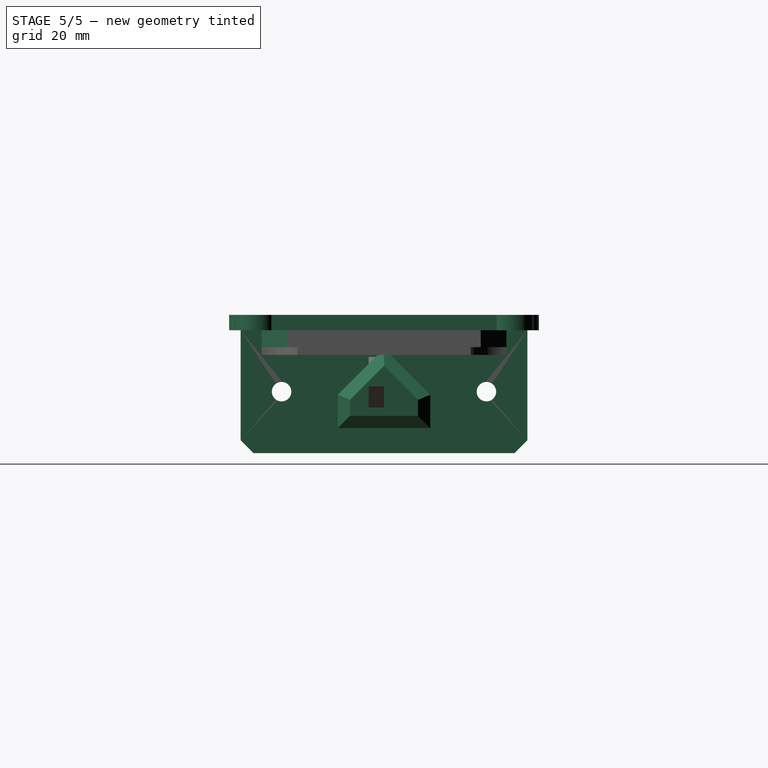
[diagram: stage 5 of 5 — right view after this stage's code; geometry added in this stage tinted green]
FEATURE [Sketcher::SketchObject] Sketch024
  ExternalGeometry = -> [DatumPoint001]
  FullyConstrained = true
  MapMode = 5
  Placement = pos=(56.3,-24,5) rot=(0.57735,0.57735,0.57735;2.0944rad)
  Support = -> [Pocket012]
  sketch-geometry (6):
    g0: ArcOfCircle CenterX=21.35 CenterY=3.4 CenterZ=0 NormalX=0 NormalY=0 NormalZ=1 AngleXU=0 Radius=2.5 StartAngle=1.5708 EndAngle=4.71239
    g1: ArcOfCircle CenterX=26.65 CenterY=3.4 CenterZ=0 NormalX=0 NormalY=0 NormalZ=1 AngleXU=0 Radius=2.5 StartAngle=4.71239 EndAngle=7.85398
    g2: LineSegment StartX=21.35 StartY=0.9 StartZ=0 EndX=26.65 EndY=0.9 EndZ=0
    g3: LineSegment StartX=21.35 StartY=5.9 StartZ=0 EndX=26.65 EndY=5.9 EndZ=0
    g4: GeomPoint X=18.85 Y=3.4 Z=0
    g5: GeomPoint X=29.15 Y=3.4 Z=0
  constraints (13):
    c: Tangent(g0,g3) = 1.5708
    c: Tangent(g0,g2) = -1.5708
    c: Tangent(g2,g1) = -1.5708
    c: Tangent(g3,g1) = 1.5708
    c: Horizontal(g2)
    c: Equal(g0,g1)
    c: DistanceY(g0,g0) = 5
    c: Symmetric(g1,g0,g-3)
    c: PointOnObject(g4,g0)
    c: PointOnObject(g5,g1)
    c: Horizontal(g5,g-3)
    c: Horizontal(g-3,g4)
    c: DistanceX(g4,g5) = 10.3
FEATURE [PartDesign::Pocket] Pocket013
  BaseFeature = -> Pocket012
  Direction = (-1,0,0)
  Length = 0.6
  Length2 = 100
  Placement = pos=(15,-24,5) rot=(0,0,1;0rad)
  Profile = -> Sketch024
  Type = 0
FEATURE [Sketcher::SketchObject] Sketch025
  ExternalGeometry = -> [DatumPoint001]
  FullyConstrained = true
  MapMode = 5
  Placement = pos=(55.7,-24,5) rot=(0.57735,0.57735,0.57735;2.0944rad)
  Support = -> [Pocket013]
  sketch-geometry (6):
    g0: ArcOfCircle CenterX=21.45 CenterY=3.4 CenterZ=0 NormalX=0 NormalY=0 NormalZ=1 AngleXU=0 Radius=2.2 StartAngle=1.5708 EndAngle=4.71239
    g1: ArcOfCircle CenterX=26.55 CenterY=3.4 CenterZ=0 NormalX=0 NormalY=0 NormalZ=1 AngleXU=0 Radius=2.2 StartAngle=4.71239 EndAngle=7.85398
    g2: LineSegment StartX=21.45 StartY=1.2 StartZ=0 EndX=26.55 EndY=1.2 EndZ=0
    g3: LineSegment StartX=21.45 StartY=5.6 StartZ=0 EndX=26.55 EndY=5.6 EndZ=0
    g4: GeomPoint X=19.25 Y=3.4 Z=0
    g5: GeomPoint X=28.75 Y=3.4 Z=0
  constraints (13):
    c: Tangent(g0,g3) = 1.5708
    c: Tangent(g0,g2) = -1.5708
    c: Tangent(g2,g1) = -1.5708
    c: Tangent(g3,g1) = 1.5708
    c: Horizontal(g2)
    c: Equal(g0,g1)
    c: Symmetric(g1,g0,g-3)
    c: DistanceY(g0,g0) = 4.4
    c: PointOnObject(g4,g0)
    c: PointOnObject(g5,g1)
    c: Horizontal(g5,g-3)
    c: Horizontal(g-3,g4)
    c: DistanceX(g4,g5) = 9.5
FEATURE [PartDesign::Pocket] Pocket014
  BaseFeature = -> Pocket013
  Direction = (-1,0,0)
  Length = 5
  Length2 = 100
  Placement = pos=(15,-24,5) rot=(0,0,1;0rad)
  Profile = -> Sketch025
  Type = 2
FEATURE [PartDesign::ShapeBinder] ShapeBinder008  label="LCD_Binder"
  Placement = pos=(16.4,-16.9,17.7) rot=(0,0,1;0rad)
  Support = -> [Box004]
  TraceSupport = false
FEATURE [PartDesign::ShapeBinder] ShapeBinder009  label="PCB Binder"
  Placement = pos=(15,-24,5) rot=(0,0,1;0rad)
  Support = -> [Box]
  TraceSupport = false
FEATURE [Sketcher::SketchObject] Sketch027
  ExternalGeometry = -> [ShapeBinder008,ShapeBinder009]
  FullyConstrained = true
  MapMode = 5
  Placement = pos=(16.4,-16.9,21) rot=(0,0,1;0rad)
  Support = -> [ShapeBinder008]
  sketch-geometry (8):
    g0: LineSegment StartX=-4.4 StartY=40.8 StartZ=0 EndX=36.9 EndY=40.8 EndZ=0
    g1: LineSegment StartX=36.9 StartY=40.8 StartZ=0 EndX=36.9 EndY=-7 EndZ=0
    g2: LineSegment StartX=36.9 StartY=-7 StartZ=0 EndX=-4.4 EndY=-7 EndZ=0
    g3: LineSegment StartX=-4.4 StartY=-7 StartZ=0 EndX=-4.4 EndY=40.8 EndZ=0
    g4: LineSegment StartX=0 StartY=33.8 StartZ=0 EndX=35.9 EndY=33.8 EndZ=0
    g5: LineSegment StartX=35.9 StartY=33.8 StartZ=0 EndX=35.9 EndY=0 EndZ=0
    g6: LineSegment StartX=35.9 StartY=0 StartZ=0 EndX=0 EndY=0 EndZ=0
    g7: LineSegment StartX=0 StartY=0 StartZ=0 EndX=0 EndY=33.8 EndZ=0
  constraints (22):
    c: Coincident(g0,g1)
    c: Coincident(g1,g2)
    c: Coincident(g2,g3)
    c: Coincident(g3,g0)
    c: Horizontal(g0)
    c: Horizontal(g2)
    c: Vertical(g1)
    c: Vertical(g3)
    c: Coincident(g4,g5)
    c: Coincident(g5,g6)
    c: Coincident(g6,g7)
    c: Coincident(g7,g4)
    c: Horizontal(g4)
    c: Horizontal(g6)
    c: Vertical(g5)
    c: Vertical(g7)
    c: Coincident(g4,g-3)
    c: Coincident(g5,g-4)
    c: Vertical(g1,g-6)
    c: DistanceY(g-6,g1) = 0.1
    c: DistanceY(g0,g-5) = 0.1
    c: DistanceX(g0,g-5) = 3
FEATURE [PartDesign::Pad] Pad009
  Direction = (0,0,1)
  Length = 3.3
  Length2 = 100
  Placement = pos=(16.4,-16.9,17.7) rot=(0,0,1;0rad)
  Profile = -> Sketch027
  Reversed = true
  Type = 0
  expr: Length = <<Dimensions>>.LCD_H
FEATURE [Sketcher::SketchObject] Sketch028
  ExternalGeometry = -> [ShapeBinder008,Pad009]
  FullyConstrained = true
  MapMode = 5
  Placement = pos=(16.4,-16.9,17.7) rot=(1,0,0;3.14159rad)
  Support = -> [ShapeBinder008]
  expr: Constraints[28] = 16.9 * 2
  sketch-geometry (12):
    g0: LineSegment StartX=35.7 StartY=-12 StartZ=0 EndX=35.7 EndY=-26 EndZ=0
    g1: LineSegment StartX=0.2 StartY=-12 StartZ=0 EndX=0.2 EndY=-26 EndZ=0
    g2: LineSegment StartX=35.7 StartY=-26 StartZ=0 EndX=27.9 EndY=-33.8 EndZ=0
    g3: LineSegment StartX=27.9 StartY=-33.8 StartZ=0 EndX=8 EndY=-33.8 EndZ=0
    g4: LineSegment StartX=8 StartY=-33.8 StartZ=0 EndX=0.2 EndY=-26 EndZ=0
    g5: LineSegment StartX=0.2 StartY=-12 StartZ=0 EndX=35.7 EndY=-12 EndZ=0
    g6: LineSegment StartX=36.9 StartY=2.665e-13 StartZ=0 EndX=36.9 EndY=-33.8 EndZ=0
    g7: LineSegment StartX=29.813 StartY=-40.8 StartZ=0 EndX=-0.4 EndY=-40.8 EndZ=0
    g8: LineSegment StartX=-0.4 StartY=-40.8 StartZ=0 EndX=-0.4 EndY=7 EndZ=0
    g9: LineSegment StartX=-0.4 StartY=7 StartZ=0 EndX=29.813 EndY=7 EndZ=0
    g10: ArcOfCircle CenterX=37.9 CenterY=8.1 CenterZ=0 NormalX=0 NormalY=0 NormalZ=1 AngleXU=0 Radius=8.16149 StartAngle=3.27678 EndAngle=4.58955
    g11: ArcOfCircle CenterX=37.9 CenterY=-41.9 CenterZ=0 NormalX=0 NormalY=0 NormalZ=1 AngleXU=0 Radius=8.16149 StartAngle=1.69363 EndAngle=3.0064
  constraints (38):
    c: Vertical(g0)
    c: Vertical(g1)
    c: Coincident(g0,g2)
    c: PointOnObject(g2,g-5)
    c: Coincident(g2,g3)
    c: PointOnObject(g3,g-5)
    c: Coincident(g3,g4)
    c: Coincident(g4,g1)
    c: Coincident(g1,g5)
    c: Coincident(g5,g0)
    c: Horizontal(g5)
    c: DistanceX(g-5,g3) = 8
    c: DistanceX(g2,g-5) = 8
    c: DistanceX(g0,g-5) = 0.2
    c: DistanceX(g-5,g1) = 0.2
    c: DistanceY(g1,g-1) = 12
    c: Angle(g4,g1) = 2.35619
    c: Angle(g0,g2) = 2.35619
    c: Horizontal(g7)
    c: Coincident(g7,g8)
    c: Vertical(g8)
    c: Coincident(g8,g9)
    c: Horizontal(g9)
    c: Coincident(g10,g9)
    c: Coincident(g10,g6)
    c: Coincident(g11,g6)
    c: Coincident(g11,g7)
    c: Equal(g10,g11)
    c: DistanceY(g6,g6) = 33.8
    c: PointOnObject(g7,g-8)
    c: PointOnObject(g9,g-7)
    c: DistanceX(g-7,g10) = 1
    c: DistanceY(g-7,g10) = 1.1
    c: DistanceY(g11,g-8) = 1.1
    c: DistanceX(g-8,g11) = 1
    c: PointOnObject(g6,g-6)
    c: Vertical(g6)
    c: DistanceX(g-7,g8) = 4
FEATURE [PartDesign::Pad] Pad010
  BaseFeature = -> Pad009
  Direction = (0,0,-1)
  Length = 1.5
  Length2 = 100
  Placement = pos=(16.4,-16.9,17.7) rot=(0,0,1;0rad)
  Profile = -> Sketch028
  Type = 0
FEATURE [PartDesign::Chamfer] Chamfer002
  Angle = 45
  Base = -> Pad010 [Edge2,Edge10]
  BaseFeature = -> Pad010
  ChamferType = 0
  FlipDirection = false
  Placement = pos=(16.4,-16.9,17.7) rot=(0,0,1;0rad)
  Size = 5
  Size2 = 1
  SupportTransform = false
  UseAllEdges = false
FEATURE [PartDesign::ShapeBinder] ShapeBinder011
  Support = -> [Mirrored]
  TraceSupport = false
FEATURE [Sketcher::SketchObject] Sketch021
  ExternalGeometry = -> [ShapeBinder011]
  FullyConstrained = true
  MapMode = 5
  Placement = pos=(0,0,21) rot=(0,0,1;0rad)
  sketch-geometry (16):
    g0: LineSegment StartX=51.2896 StartY=-28 StartZ=0 EndX=3.75 EndY=-28 EndZ=0
    g1: LineSegment StartX=57.3 StartY=21.9896 StartZ=0 EndX=57.3 EndY=-21.9896 EndZ=0
    g2: ArcOfCircle CenterX=54.3 CenterY=25 CenterZ=0 NormalX=0 NormalY=0 NormalZ=1 AngleXU=0 Radius=4.25 StartAngle=5.49606 EndAngle=8.64111
    g3: ArcOfCircle CenterX=54.3 CenterY=-25 CenterZ=0 NormalX=0 NormalY=0 NormalZ=1 AngleXU=0 Radius=4.25 StartAngle=3.92526 EndAngle=7.07031
    g4: Circle CenterX=-55 CenterY=18 CenterZ=0 NormalX=0 NormalY=0 NormalZ=1 AngleXU=0 Radius=1.65
    g5: Circle CenterX=-55 CenterY=-18 CenterZ=0 NormalX=0 NormalY=0 NormalZ=1 AngleXU=0 Radius=1.65
    g6: Circle CenterX=54.3 CenterY=-25 CenterZ=0 NormalX=0 NormalY=0 NormalZ=1 AngleXU=0 Radius=1.65
    g7: Circle CenterX=54.3 CenterY=25 CenterZ=0 NormalX=0 NormalY=0 NormalZ=1 AngleXU=0 Radius=1.65
    g8: LineSegment StartX=-68 StartY=28 StartZ=0 EndX=-3.75 EndY=28 EndZ=0
    g9: ArcOfCircle CenterX=0 CenterY=-26 CenterZ=0 NormalX=0 NormalY=0 NormalZ=1 AngleXU=0 Radius=4.25 StartAngle=3.63155 EndAngle=5.79323
    g10: Circle CenterX=0 CenterY=-26 CenterZ=0 NormalX=0 NormalY=0 NormalZ=1 AngleXU=0 Radius=1.65
    g11: LineSegment StartX=-3.75 StartY=-28 StartZ=0 EndX=-68 EndY=-28 EndZ=0
    g12: ArcOfCircle CenterX=0 CenterY=26 CenterZ=0 NormalX=0 NormalY=0 NormalZ=1 AngleXU=0 Radius=4.25 StartAngle=0.489957 EndAngle=2.65164
    g13: Circle CenterX=0 CenterY=26 CenterZ=0 NormalX=0 NormalY=0 NormalZ=1 AngleXU=0 Radius=1.65
    g14: LineSegment StartX=3.75 StartY=28 StartZ=0 EndX=51.2896 EndY=28 EndZ=0
    g15: LineSegment StartX=-68 StartY=28 StartZ=0 EndX=-68 EndY=-28 EndZ=0
  constraints (42):
    c: Coincident(g2,g1)
    c: Coincident(g3,g1)
    c: Coincident(g3,g0)
    c: Coincident(g6,g3)
    c: Coincident(g7,g2)
    c: Coincident(g14,g2)
    c: Vertical(g1)
    c: Coincident(g2,g-8)
    c: Coincident(g2,g-8)
    c: PointOnObject(g1,g-9)
    c: Coincident(g0,g-5)
    c: Coincident(g3,g-6)
    c: Equal(g-10,g6)
    c: Equal(g4,g7)
    c: Equal(g7,g5)
    c: Equal(g5,g6)
    c: Coincident(g5,g-13)
    c: Coincident(g4,g-12)
    c: PointOnObject(g9,g-2)
    c: Coincident(g10,g9)
    c: DistanceY(g9,g-1) = 26
    c: Diameter(g10) = 3.3
    c: Diameter(g9) = 8.5
    c: Coincident(g9,g0)
    c: Coincident(g9,g11)
    c: Horizontal(g0)
    c: Horizontal(g11)
    c: Coincident(g13,g12)
    c: Diameter(g13) = 3.3
    c: Diameter(g12) = 8.5
    c: DistanceY(g-1,g12) = 26
    c: Horizontal(g8)
    c: Horizontal(g14)
    c: PointOnObject(g12,g-2)
    c: Coincident(g8,g12)
    c: Coincident(g12,g14)
    c: DistanceX(g8,g-3) = 3
    c: DistanceX(g11,g-4) = 3
    c: PointOnObject(g-4,g11)
    c: PointOnObject(g-3,g8)
    c: Coincident(g15,g8)
    c: Coincident(g15,g11)
FEATURE [PartDesign::Pad] Pad007
  Direction = (0,0,1)
  Length = 3
  Length2 = 100
  Placement = pos=(0,0,21) rot=(0,0,1;0rad)
  Profile = -> Sketch021
  Type = 0
FEATURE [PartDesign::Pocket] Pocket015
  BaseFeature = -> Pad007
  Direction = (0,0,-1)
  Length = 5
  Length2 = 100
  Placement = pos=(0,0,21) rot=(0,0,1;0rad)
  Profile = -> Sketch026
  Reversed = true
  Type = 1
FEATURE [PartDesign::Body] Body
  Group = -> [Sketch,Pad,ShapeBinder,ShapeBinder001,ShapeBinder002,ShapeBinder003,ShapeBinder004,DatumPlane,Sketch001,Pocket,Sketch002,Pocket001,Sketch003,Pocket002,Sketch004,Pad001,Sketch005,Pocket003,Sketch006,Pad002,DatumPoint,DatumLine,DatumPlane002,Sketch009,Pocket005,Sketch011,Pad004,Sketch012,Pocket007,Sketch013,Pocket008,Sketch014,DatumLine001,Revolution,Sketch015,Groove,Mirrored,Sketch016,Pad005,+31 more]
  Origin = -> Origin
  Tip = -> Mirrored007
FEATURE [Part::Refine] Body001  label="Main Body"
  Source = -> Body
FEATURE [TechDraw::DrawViewPart] View
  CoarseView = false
  Direction = (0,-1,0)
  Focus = 100
  HardHidden = false
  IsoCount = 0
  IsoHidden = false
  IsoVisible = false
  LockPosition = false
  Perspective = false
  Rotation = 0
  ScaleType = 0
  SeamHidden = false
  SeamVisible = true
  SmoothHidden = false
  SmoothVisible = true
  Source = -> [Body001]
  X = 138.465
  XDirection = (1,0,0)
  Y = 97.3872
FEATURE [TechDraw::DrawViewSection] SectionView  label="Section  - "
  BaseView = -> View
  CoarseView = false
  CutSurfaceDisplay = 2
  Direction = (0,0,-1)
  FileGeomPattern = /snap/freecad/22/opt/local/FreeCAD-0.19/share/Mod/TechDraw/PAT/FCPAT.pat
  FileHatchPattern = /snap/freecad/22/opt/local/FreeCAD-0.19/share/Mod/TechDraw/Patterns/simple.svg
  Focus = 100
  FuseBeforeCut = false
  HardHidden = false
  HatchScale = 1
  IsoCount = 0
  IsoHidden = false
  IsoVisible = false
  LockPosition = false
  NameGeomPattern = Diamond
  Perspective = false
  Rotation = 0
  ScaleType = 0
  SeamHidden = false
  SeamVisible = true
  SectionDirection = 2
  SectionNormal = (0,0,-1)
  SectionOrigin = (-6.45,0,19)
  SmoothHidden = false
  SmoothVisible = true
  Source = -> [Body001]
  X = 220.129
  XDirection = (1,0,0)
  Y = 173.169
FEATURE [TechDraw::DrawViewSection] SectionView001  label="Section  - 001"
  BaseView = -> View
  CoarseView = false
  CutSurfaceDisplay = 2
  Direction = (1,0,0)
  FileGeomPattern = /snap/freecad/22/opt/local/FreeCAD-0.19/share/Mod/TechDraw/PAT/FCPAT.pat
  FileHatchPattern = /snap/freecad/22/opt/local/FreeCAD-0.19/share/Mod/TechDraw/Patterns/simple.svg
  Focus = 100
  FuseBeforeCut = false
  HardHidden = false
  HatchScale = 1
  IsoCount = 0
  IsoHidden = false
  IsoVisible = false
  LockPosition = false
  NameGeomPattern = Diamond
  Perspective = false
  Rotation = 0
  ScaleType = 0
  SeamHidden = false
  SeamVisible = true
  SectionDirection = 1
  SectionNormal = (1,0,0)
  SectionOrigin = (-60.45,0,9)
  SmoothHidden = false
  SmoothVisible = true
  Source = -> [Body001]
  X = 86.2139
  XDirection = (0,1,0)
  Y = 174.207
FEATURE [TechDraw::DrawPage] Page  label="Gaskets"
  KeepUpdated = true
  NextBalloonIndex = 1
  ProjectionType = 0
  Template = -> Template
  Views = -> [View,SectionView,SectionView001]
FEATURE [PartDesign::ShapeBinder] ShapeBinder005
  Support = -> [Body001]
  TraceSupport = false
FEATURE [Sketcher::SketchObject] Sketch020
  ExternalGeometry = -> [ShapeBinder005]
  FullyConstrained = false
  MapMode = 5
  Placement = pos=(0,0,0) rot=(0.57735,0.57735,0.57735;2.0944rad)
  Support = -> [YZ_Plane001]
  sketch-geometry (8):
    g0: Circle CenterX=-20 CenterY=9 CenterZ=0 NormalX=0 NormalY=0 NormalZ=1 AngleXU=0 Radius=1.9
    g1: Circle CenterX=20 CenterY=9 CenterZ=0 NormalX=0 NormalY=0 NormalZ=1 AngleXU=0 Radius=1.9
    g2: LineSegment StartX=-28 StartY=21 StartZ=0 EndX=28 EndY=21 EndZ=0
    g3: LineSegment StartX=28 StartY=21 StartZ=0 EndX=28 EndY=-0.5 EndZ=0
    g4: LineSegment StartX=28 StartY=-0.5 StartZ=0 EndX=25.5 EndY=-3 EndZ=0
    g5: LineSegment StartX=25.5 StartY=-3 StartZ=0 EndX=-25.5 EndY=-3 EndZ=0
    g6: LineSegment StartX=-25.5 StartY=-3 StartZ=0 EndX=-28 EndY=-0.5 EndZ=0
    g7: LineSegment StartX=-28 StartY=-0.5 StartZ=0 EndX=-28 EndY=21 EndZ=0
  constraints (6):
    c: Coincident(g2,g3)
    c: Coincident(g3,g4)
    c: Coincident(g4,g5)
    c: Coincident(g5,g6)
    c: Coincident(g6,g7)
    c: Coincident(g7,g2)
FEATURE [PartDesign::Pad] Pad006
  Direction = (1,-2e-16,3e-16)
  Length = 3
  Length2 = 100
  Placement = pos=(0,0,0) rot=(0.57735,0.57735,0.57735;2.0944rad)
  Profile = -> Sketch020
  Type = 0
FEATURE [PartDesign::Body] Body002  label="Front Plate"
  Group = -> [ShapeBinder005,Sketch020,Pad006]
  Origin = -> Origin001
  Placement = pos=(-68,0,0) rot=(0,0,1;0rad)
  Tip = -> Pad006
FEATURE [TechDraw::DrawViewPart] View002
  CoarseView = false
  Direction = (-1,0,0)
  Focus = 100
  HardHidden = false
  IsoCount = 0
  IsoHidden = false
  IsoVisible = false
  LockPosition = false
  Perspective = false
  Rotation = 0
  ScaleType = 0
  SeamHidden = false
  SeamVisible = true
  SmoothHidden = false
  SmoothVisible = true
  Source = -> [Body002]
  X = 210.786
  XDirection = (0,-1,0)
  Y = 161.307
FEATURE [TechDraw::DrawPage] Page001  label="Acrylic"
  KeepUpdated = true
  NextBalloonIndex = 1
  ProjectionType = 0
  Template = -> Template001
  Views = -> [View001,View002]
FEATURE [Part::Refine] Body004002  label="Main Body Clone"
  Source = -> Body
FEATURE [Part::Cut] Cut  label="End Widget Final"
  Base = -> Body004001
  Tool = -> Body004002
FEATURE [Part::Chamfer] Chamfer003
  Base = -> Cut
  Edges = 5 edges r=0.5: [Edge1,Edge2,Edge3,Edge4,Edge5]
FEATURE [Part::FeaturePython] Clone  label="End Widget Final001"  # Draft clone (typed FeaturePython)
  AttacherType = Attacher::AttachEngine3D
  Fuse = false
  Objects = -> [Chamfer003]
  Scale = (0.95,0.95,0.95)
  expr: .Scale.x = 0.95
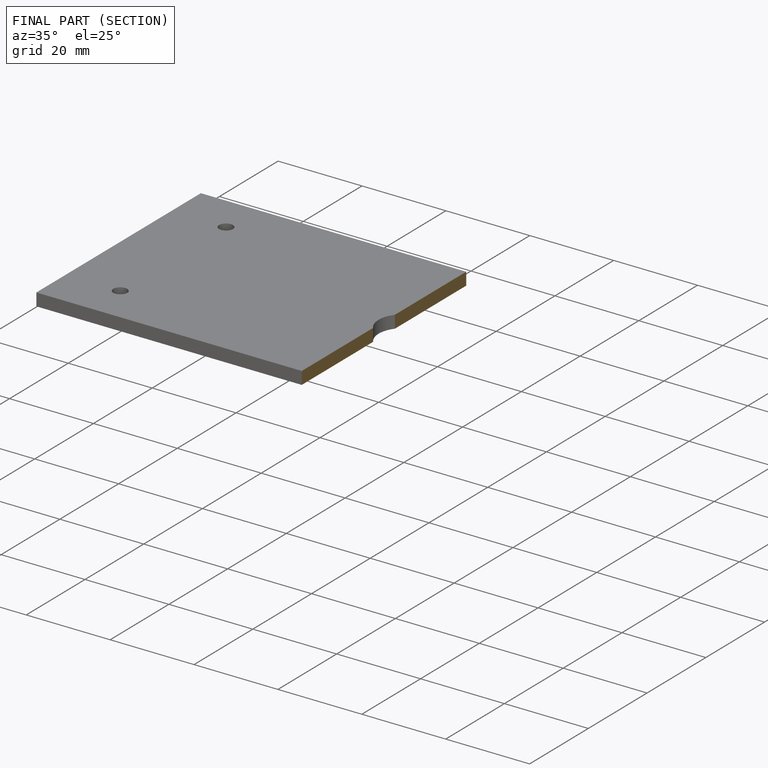
[diagram: finished part — half-section view (interior)]
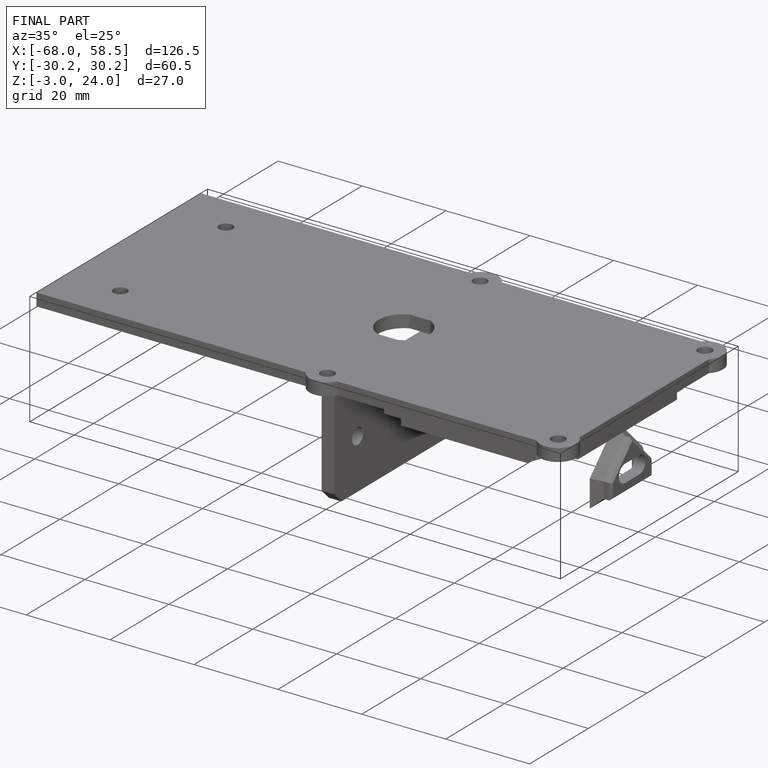
[diagram: finished part — iso view with bounding-box wireframe]
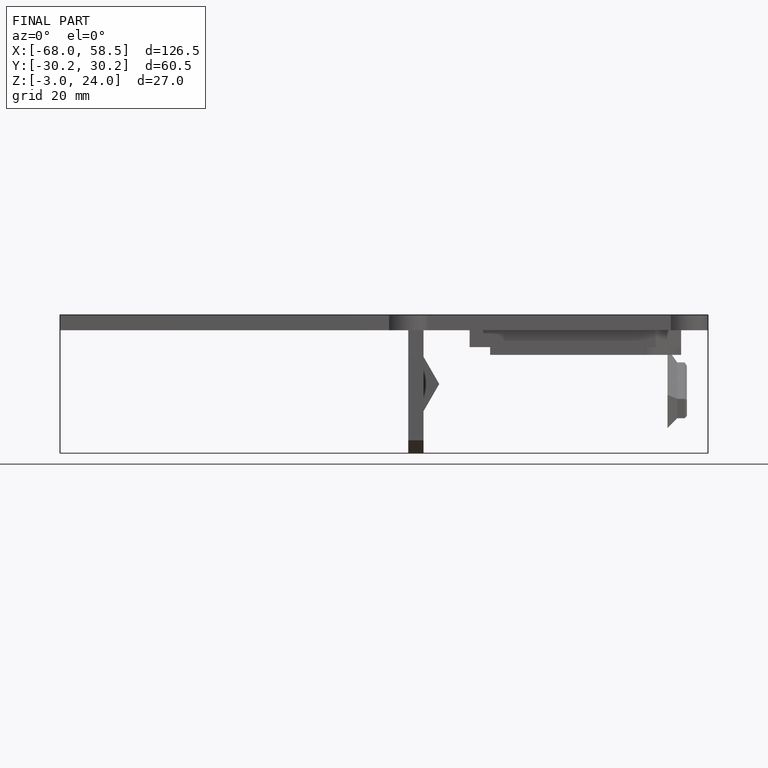
[diagram: finished part — front view with bounding-box wireframe]
